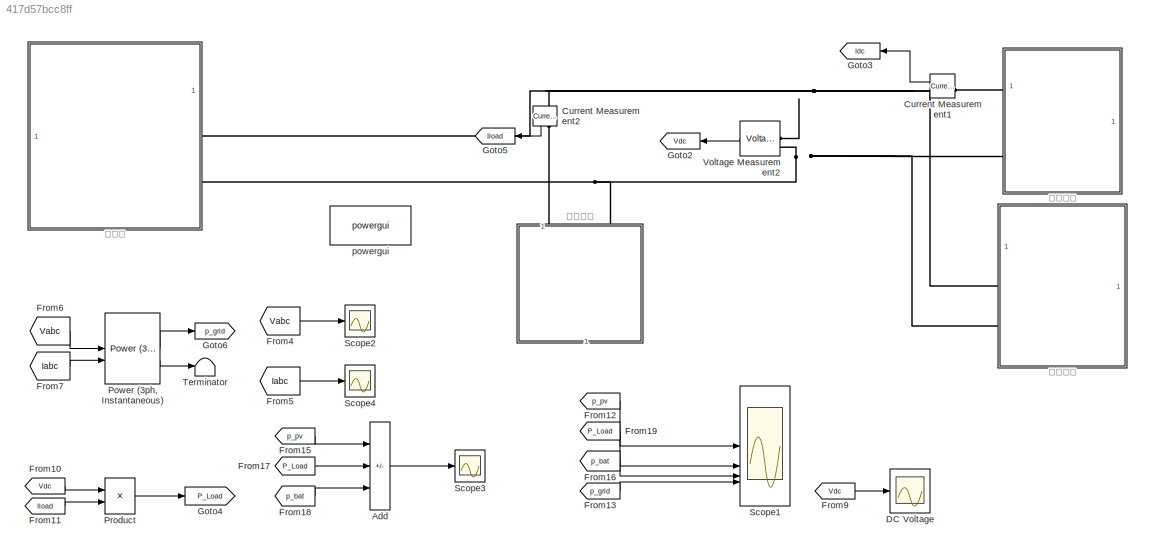
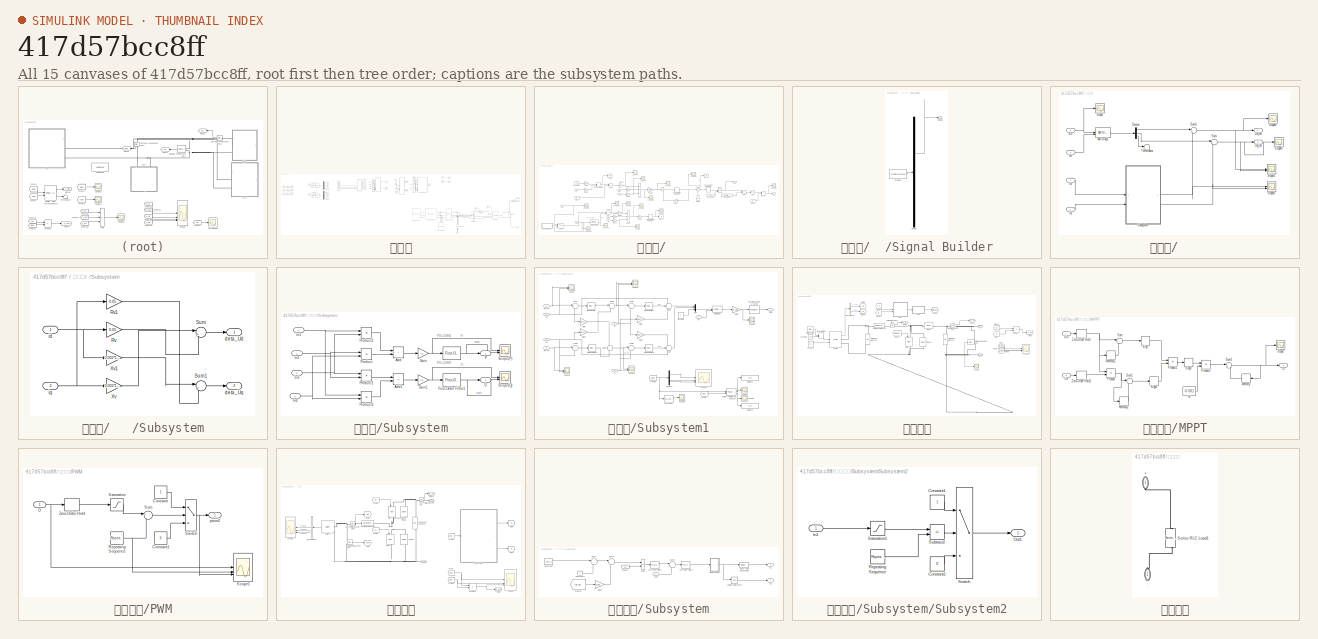
[diagram: thumbnail index - all 15 canvases of the model, root first then tree order]
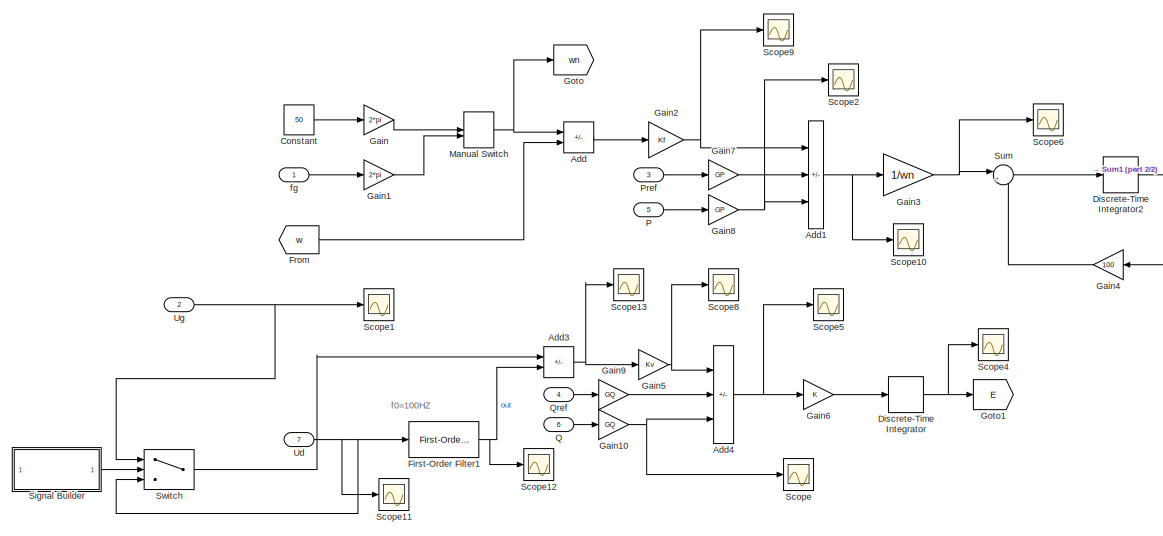
[diagram: 交流测/   - part 1/2, left side, full height]
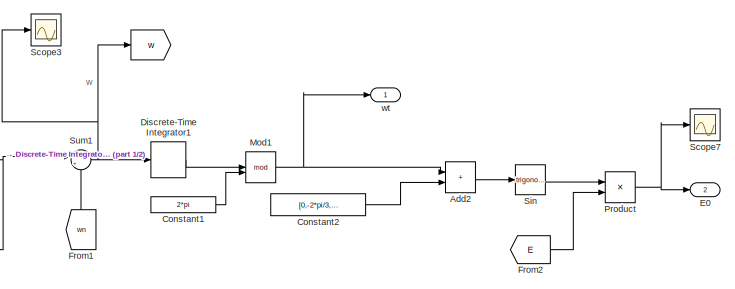
[diagram: 交流测/   - part 2/2, top right region]
MODEL slx_417d57bcc8ff
KIND model
CONFIG AbsTol = auto
CONFIG EnableMultiTasking = off
CONFIG FixedStep = auto
CONFIG InitFcn = clear all;\n\nStep_time=2;  %并网转离网的切换时间\nTf=0.0159*0.25 %直流侧电流滤波常数\n\nVdc_H2=720;   %直流母线电压最大值\nVdc_H1=710;   %\nUdc=700;   %直流母线电压最大值\nVdc_L1=690;   \nVdc_L2=680;   %直流母线电压最小值\n\n%% 并网变流器部分 %%\nP_grid=100e3;  %变流器额定功率\nCg=3227e-6;   %直流母线电容\nP_grid=100e3;  %变流器额定功率\nIdc_max=145;   %直流侧最大输出电流\n%Rg=(720-700)/Idc_max;   %下垂系数\nRg=40*(Udc-40)/P_grid;   %下垂系数\nIgrid_max=72;   %并网逆变器最大充放电电流（交流侧）\n\n%% 蓄电池部分 %%\nP_ba=50e3; ...<+221ch>
CONFIG MaxStep = auto
CONFIG MinStep = auto
CONFIG RelTol = 1e-3
CONFIG SampleTimeConstraint = Unconstrained
CONFIG SolverName = VariableStepAuto
CONFIG StartTime = 0.0
CONFIG StopTime = 4
WORKSPACE source: mxarray member
WORKSPACE C = 0.002
WORKSPACE GP = 1
WORKSPACE GQ = 0.01
WORKSPACE J = 5
WORKSPACE KQ = 0.06
WORKSPACE Kf = 800
WORKSPACE Kv = 577
WORKSPACE L = 0.002
WORKSPACE Ts = 5e-05
WORKSPACE Vdc = 400
WORKSPACE fsw = 20000
WORKSPACE wn = 314.159265359
BLOCK [Sum] Add
  IconShape = rectangular
  Inputs = +--
BLOCK [Reference] Current Measurement1  REF=spsCurrentMeasurementLib/Current Measurement
  LibrarySourceBlock = sps_lib/Sensors and Measurements/Current Measurement
  SourceBlock = spsCurrentMeasurementLib/Current Measurement
  SourceType = Current Measurement
  UserDataPersistent = on
BLOCK [Reference] Current Measurement2  REF=spsCurrentMeasurementLib/Current Measurement
  LibrarySourceBlock = sps_lib/Sensors and Measurements/Current Measurement
  NameLocation = right
  SourceBlock = spsCurrentMeasurementLib/Current Measurement
  SourceType = Current Measurement
  UserDataPersistent = on
BLOCK [Scope] DC Voltage
  Floating = off
  NumInputPorts = 1
  ScopeSpecificationString = Simulink.scopes.TimeScopeBlockCfg('CurrentConfiguration', extmgr.ConfigurationSet(extmgr.Configuration('Core','General UI',true,'FigureColor',[1 1 1]),extmgr.Configuration('Core','Source UI',true),extmgr.Configuration('Sources','WiredSimulink',true,'DataLoggingVariableName','ScopeData1'),extmgr.Configuration('Visuals','Time Domain',true,'SerializedDisplays',{struct('MinYLimReal','-137.0594','MaxYL...<+1584ch>
BLOCK [From] From10
  GotoTag = Vdc
  TagVisibility = global
BLOCK [From] From11
  GotoTag = Iload
  TagVisibility = global
BLOCK [From] From12
  GotoTag = p_pv
  TagVisibility = global
BLOCK [From] From13
  GotoTag = p_grid
BLOCK [From] From15
  GotoTag = p_pv
  TagVisibility = global
BLOCK [From] From16
  GotoTag = p_bat
  TagVisibility = global
BLOCK [From] From17
  GotoTag = P_Load
  TagVisibility = global
BLOCK [From] From18
  GotoTag = p_bat
  TagVisibility = global
BLOCK [From] From19
  GotoTag = P_Load
  TagVisibility = global
BLOCK [From] From4
  GotoTag = Vabc
  TagVisibility = global
BLOCK [From] From5
  GotoTag = Iabc
  TagVisibility = global
BLOCK [From] From6
  GotoTag = Vabc
  TagVisibility = global
BLOCK [From] From7
  GotoTag = Iabc
  TagVisibility = global
BLOCK [From] From9
  GotoTag = Vdc
  TagVisibility = global
BLOCK [Goto] Goto2
  GotoTag = Vdc
  TagVisibility = global
BLOCK [Goto] Goto3
  GotoTag = Idc
  TagVisibility = global
BLOCK [Goto] Goto4
  GotoTag = P_Load
  TagVisibility = global
BLOCK [Goto] Goto5
  GotoTag = Iload
  TagVisibility = global
BLOCK [Goto] Goto6
  GotoTag = p_grid
BLOCK [Reference] Power (3ph, Instantaneous)  REF=spsPower3phInstantaneousLib/Power
(3ph, Instantaneous)
  LibrarySourceBlock = sps_lib/Sensors and Measurements/Power\n(3ph, Instantaneous)
  SourceBlock = spsPower3phInstantaneousLib/Power\n(3ph, Instantaneous)
  SourceType = Power (3ph, Instantaneous)
BLOCK [Product] Product
BLOCK [Scope] Scope1
  Floating = off
  NumInputPorts = 4
  ScopeSpecificationString = Simulink.scopes.TimeScopeBlockCfg('CurrentConfiguration', extmgr.ConfigurationSet(extmgr.Configuration('Core','General UI',true,'FigureColor',[1 1 1]),extmgr.Configuration('Core','Source UI',true),extmgr.Configuration('Sources','WiredSimulink',true,'DataLoggingVariableName','ScopeData3'),extmgr.Configuration('Visuals','Time Domain',true,'SerializedDisplays',{struct('MinYLimReal','-140098.10766','M...<+4003ch>
BLOCK [Scope] Scope2
  Floating = off
  NumInputPorts = 1
  ScopeSpecificationString = Simulink.scopes.TimeScopeBlockCfg('CurrentConfiguration', extmgr.ConfigurationSet(extmgr.Configuration('Core','General UI',true),extmgr.Configuration('Core','Source UI',true),extmgr.Configuration('Sources','WiredSimulink',true,'DataLoggingVariableName','test','DataLogging',true,'DataLoggingSaveFormat','StructureWithTime'),extmgr.Configuration('Visuals','Time Domain',true,'SerializedDisplays',{stru...<+1567ch>
BLOCK [Scope] Scope3
  Floating = off
  NumInputPorts = 1
  ScopeSpecificationString = Simulink.scopes.TimeScopeBlockCfg('CurrentConfiguration', extmgr.ConfigurationSet(extmgr.Configuration('Core','General UI',true,'FigureColor',[1 1 1]),extmgr.Configuration('Core','Source UI',true),extmgr.Configuration('Sources','WiredSimulink',true,'DataLoggingVariableName','ScopeData5'),extmgr.Configuration('Visuals','Time Domain',true,'SerializedDisplays',{struct('MinYLimReal','-345597.76379','M...<+1581ch>
BLOCK [Scope] Scope4
  Floating = off
  NumInputPorts = 1
  ScopeSpecificationString = Simulink.scopes.TimeScopeBlockCfg('CurrentConfiguration', extmgr.ConfigurationSet(extmgr.Configuration('Core','General UI',true),extmgr.Configuration('Core','Source UI',true),extmgr.Configuration('Sources','WiredSimulink',true,'DataLoggingVariableName','ScopeData2'),extmgr.Configuration('Visuals','Time Domain',true,'SerializedDisplays',{struct('MinYLimReal','-432.88404','MaxYLimReal','462.87204','...<+1510ch>
BLOCK [Terminator] Terminator
BLOCK [Reference] Voltage Measurement2  REF=spsVoltageMeasurementLib/Voltage Measurement
  LibrarySourceBlock = sps_lib/Sensors and Measurements/Voltage Measurement
  SourceBlock = spsVoltageMeasurementLib/Voltage Measurement
  SourceType = Voltage Measurement
  UserDataPersistent = on
BLOCK [Reference] powergui  REF=spspowerguiLib/powergui
  Priority = 1
  SourceBlock = spspowerguiLib/powergui
  SourceType = PSB option menu block
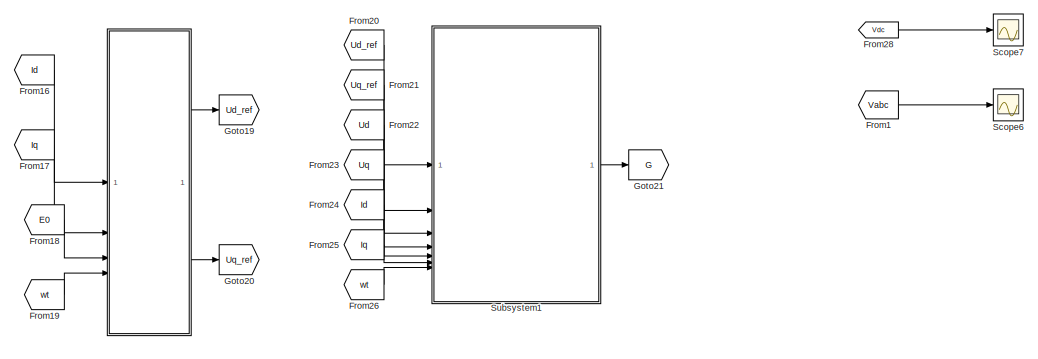
[diagram: 交流测 - part 1/5, top center region]
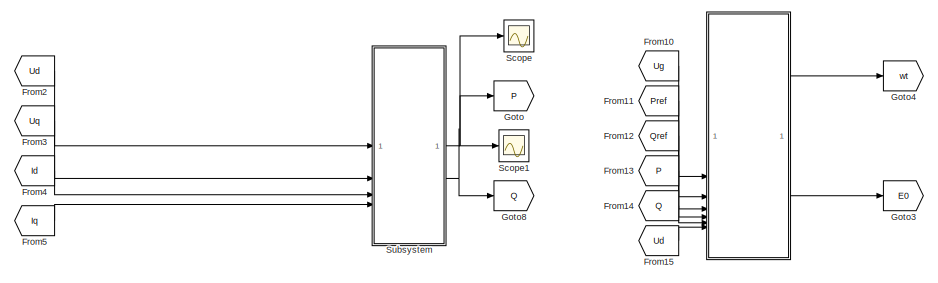
[diagram: 交流测 - part 2/5, top center region]
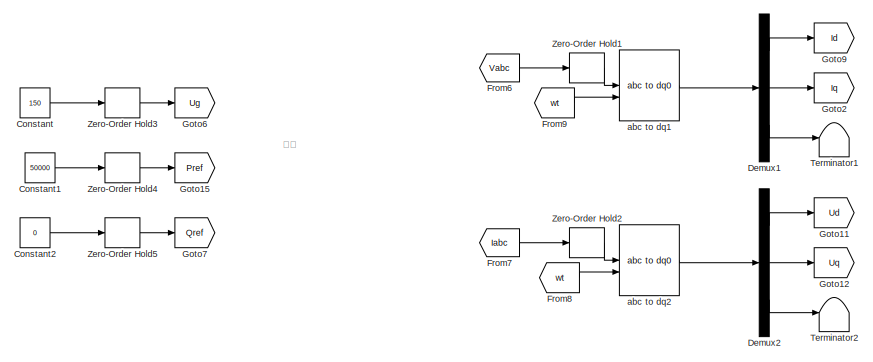
[diagram: 交流测 - part 3/5, top left region]
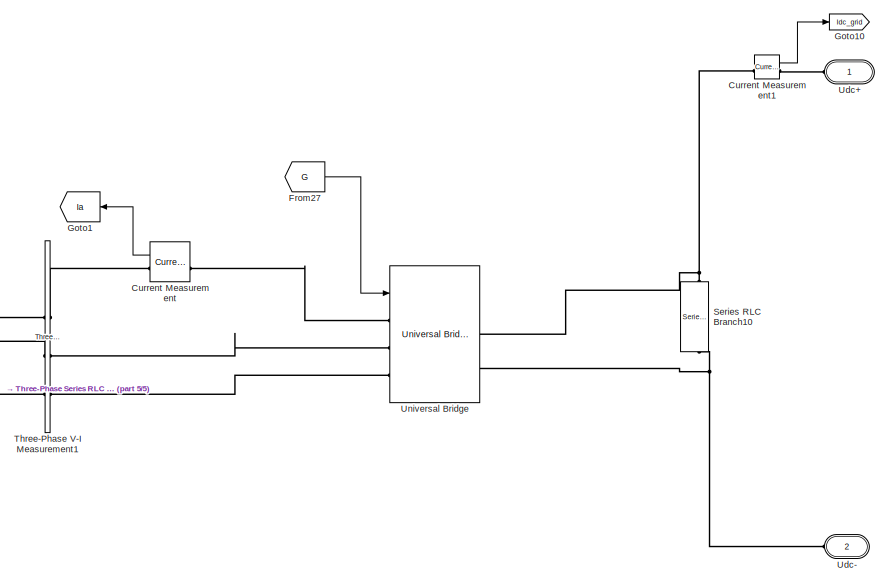
[diagram: 交流测 - part 4/5, middle right region]
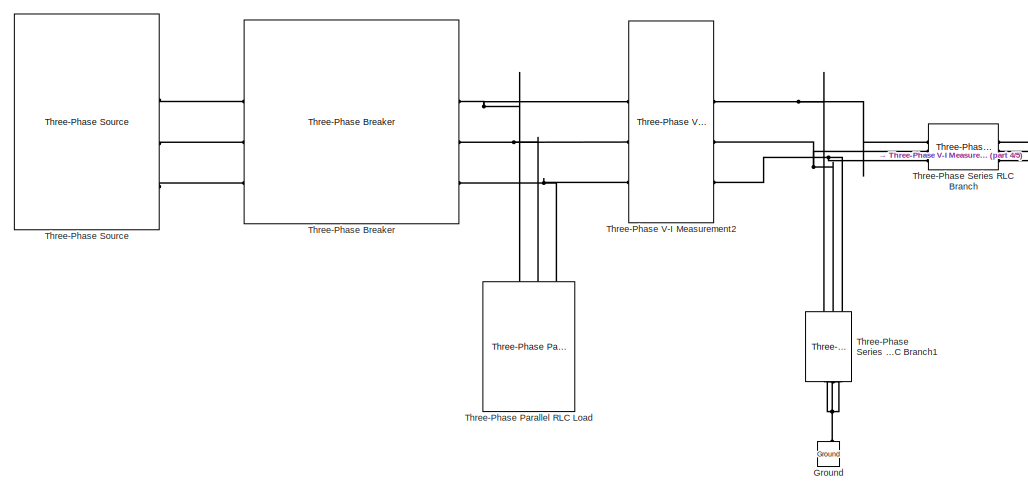
[diagram: 交流测 - part 5/5, bottom center region]
BLOCK [SubSystem] 交流测
BLOCK [SubSystem] 交流测/  
BLOCK [SubSystem] 交流测/   
BLOCK [Demux] 交流测/   /Demux
  Outputs = 3
BLOCK [Inport] 交流测/   /E0
  Description = Cont
  Port = 3
BLOCK [Inport] 交流测/   /Id
BLOCK [Inport] 交流测/   /Iq
  Port = 2
BLOCK [Scope] 交流测/   /Scope
  Floating = off
  NumInputPorts = 1
  ScopeSpecificationString = Simulink.scopes.TimeScopeBlockCfg('CurrentConfiguration', extmgr.ConfigurationSet(extmgr.Configuration('Core','General UI',true),extmgr.Configuration('Core','Source UI',true),extmgr.Configuration('Sources','WiredSimulink',true),extmgr.Configuration('Visuals','Time Domain',true,'SerializedDisplays',{struct('MinYLimReal','-1483.56308','MaxYLimReal','1483.139','YLabelReal','','MinYLimMag','  0.00000'...<+1356ch>
BLOCK [Scope] 交流测/   /Scope1
  Floating = off
  NumInputPorts = 2
  ScopeSpecificationString = Simulink.scopes.TimeScopeBlockCfg('CurrentConfiguration', extmgr.ConfigurationSet(extmgr.Configuration('Core','General UI',true),extmgr.Configuration('Core','Source UI',true),extmgr.Configuration('Sources','WiredSimulink',true,'DataLoggingVariableName','ScopeData1'),extmgr.Configuration('Visuals','Time Domain',true,'SerializedDisplays',{struct('MinYLimReal','-3363.40131','MaxYLimReal','3214.4683',...<+1389ch>
BLOCK [Scope] 交流测/   /Scope2
  Floating = off
  NumInputPorts = 1
  ScopeSpecificationString = Simulink.scopes.TimeScopeBlockCfg('CurrentConfiguration', extmgr.ConfigurationSet(extmgr.Configuration('Core','General UI',true),extmgr.Configuration('Core','Source UI',true),extmgr.Configuration('Sources','WiredSimulink',true,'DataLoggingVariableName','ScopeData3'),extmgr.Configuration('Visuals','Time Domain',true,'SerializedDisplays',{struct('MinYLimReal','-388.39314','MaxYLimReal','1172.64112',...<+1406ch>
BLOCK [Scope] 交流测/   /Scope3
  Floating = off
  NumInputPorts = 2
  ScopeSpecificationString = Simulink.scopes.TimeScopeBlockCfg('CurrentConfiguration', extmgr.ConfigurationSet(extmgr.Configuration('Core','General UI',true),extmgr.Configuration('Core','Source UI',true),extmgr.Configuration('Sources','WiredSimulink',true,'DataLoggingVariableName','ScopeData3'),extmgr.Configuration('Visuals','Time Domain',true),extmgr.Configuration('Tools','Plot Navigation',true),extmgr.Configuration('Tools',...<+58ch>
BLOCK [Scope] 交流测/   /Scope4
  Floating = off
  NumInputPorts = 1
  ScopeSpecificationString = Simulink.scopes.TimeScopeBlockCfg('CurrentConfiguration', extmgr.ConfigurationSet(extmgr.Configuration('Core','General UI',true),extmgr.Configuration('Core','Source UI',true),extmgr.Configuration('Sources','WiredSimulink',true,'DataLoggingVariableName','ScopeData4'),extmgr.Configuration('Visuals','Time Domain',true),extmgr.Configuration('Tools','Plot Navigation',true),extmgr.Configuration('Tools',...<+40ch>
BLOCK [SubSystem] 交流测/   /Subsystem
BLOCK [Gain] 交流测/   /Subsystem/Rv
  Gain = 0.05
BLOCK [Gain] 交流测/   /Subsystem/Rv1
  Gain = 0.05
BLOCK [Sum] 交流测/   /Subsystem/Sum
  Inputs = |+-
BLOCK [Sum] 交流测/   /Subsystem/Sum1
  Inputs = |++
BLOCK [Gain] 交流测/   /Subsystem/Xv
  Gain = 0.002*100*pi
BLOCK [Gain] 交流测/   /Subsystem/Xv1
  Gain = 0.002*100*pi
BLOCK [Outport] 交流测/   /Subsystem/deta_Ud
BLOCK [Outport] 交流测/   /Subsystem/deta_Uq
  Port = 2
BLOCK [Inport] 交流测/   /Subsystem/id
BLOCK [Inport] 交流测/   /Subsystem/iq
  Port = 2
BLOCK [Sum] 交流测/   /Sum
  Inputs = |+-
BLOCK [Sum] 交流测/   /Sum1
  Inputs = |++
BLOCK [Terminator] 交流测/   /Terminator
BLOCK [Outport] 交流测/   /Ud_ref
BLOCK [Outport] 交流测/   /Uq_ref
  Port = 2
BLOCK [Reference] 交流测/   /abc to dq1  REF=spsabctodq0Lib/abc to dq0
  LibrarySourceBlock = sps_lib/Control/abc to dq0
  SourceBlock = spsabctodq0Lib/abc to dq0
  SourceType = abc to dq0 Transformation
BLOCK [Inport] 交流测/   /wt
  Port = 4
BLOCK [Goto] 交流测/  / 
  GotoTag = w
BLOCK [Sum] 交流测/  /Add
  IconShape = rectangular
  Inputs = +-
BLOCK [Sum] 交流测/  /Add1
  IconShape = rectangular
  Inputs = ++-
BLOCK [Sum] 交流测/  /Add2
  IconShape = rectangular
BLOCK [Sum] 交流测/  /Add3
  IconShape = rectangular
  Inputs = +-
BLOCK [Sum] 交流测/  /Add4
  IconShape = rectangular
  Inputs = ++-
BLOCK [Constant] 交流测/  /Constant
  Value = 50
BLOCK [Constant] 交流测/  /Constant1
  Value = 2*pi
BLOCK [Constant] 交流测/  /Constant2
  Value = [0,-2*pi/3,2*pi/3]
BLOCK [DiscreteIntegrator] 交流测/  /Discrete-Time Integrator
  ICPrevOutput = DiscIntNeverNeededParam
  ICPrevScaledInput = DiscIntNeverNeededParam
  InitialConditionSetting = Auto
  SampleTime = 1/fsw
  gainval = KQ
BLOCK [DiscreteIntegrator] 交流测/  /Discrete-Time Integrator1
  ICPrevOutput = DiscIntNeverNeededParam
  ICPrevScaledInput = DiscIntNeverNeededParam
  InitialConditionSetting = Auto
  SampleTime = 1/fsw
BLOCK [DiscreteIntegrator] 交流测/  /Discrete-Time Integrator2
  ICPrevOutput = DiscIntNeverNeededParam
  ICPrevScaledInput = DiscIntNeverNeededParam
  InitialConditionSetting = Auto
  SampleTime = 1/fsw
  gainval = 1/J
BLOCK [Outport] 交流测/  /E0
  Port = 2
BLOCK [Reference] 交流测/  /First-Order Filter1  REF=spsFirstOrderFilterLib/First-Order
Filter
  LibrarySourceBlock = sps_lib/Control/Filters/First-Order\nFilter
  SourceBlock = spsFirstOrderFilterLib/First-Order\nFilter
  SourceType = First-Order Filter
BLOCK [From] 交流测/  /From
  GotoTag = w
BLOCK [From] 交流测/  /From1
  GotoTag = wn
  NameLocation = right
BLOCK [From] 交流测/  /From2
  GotoTag = E
BLOCK [Gain] 交流测/  /Gain
  Gain = 2*pi
BLOCK [Gain] 交流测/  /Gain1
  Gain = 2*pi
BLOCK [Gain] 交流测/  /Gain10
  Gain = GQ
BLOCK [Gain] 交流测/  /Gain2
  Gain = Kf
BLOCK [Gain] 交流测/  /Gain3
  Gain = 1/wn
BLOCK [Gain] 交流测/  /Gain4
  Gain = 100
BLOCK [Gain] 交流测/  /Gain5
  Gain = Kv
BLOCK [Gain] 交流测/  /Gain6
BLOCK [Gain] 交流测/  /Gain7
  Gain = GP
BLOCK [Gain] 交流测/  /Gain8
  Gain = GP
BLOCK [Gain] 交流测/  /Gain9
  Gain = GQ
BLOCK [Goto] 交流测/  /Goto
  GotoTag = wn
BLOCK [Goto] 交流测/  /Goto1
  GotoTag = E
BLOCK [ManualSwitch] 交流测/  /Manual Switch
BLOCK [Math] 交流测/  /Mod1
  Operator = mod
BLOCK [Inport] 交流测/  /P
  Port = 5
BLOCK [Inport] 交流测/  /Pref
  Port = 3
BLOCK [Product] 交流测/  /Product
BLOCK [Inport] 交流测/  /Q
  Port = 6
BLOCK [Inport] 交流测/  /Qref
  Port = 4
BLOCK [Scope] 交流测/  /Scope
  Floating = off
  NumInputPorts = 1
  ScopeSpecificationString = Simulink.scopes.TimeScopeBlockCfg('CurrentConfiguration', extmgr.ConfigurationSet(extmgr.Configuration('Core','General UI',true),extmgr.Configuration('Core','Source UI',true),extmgr.Configuration('Sources','WiredSimulink',true),extmgr.Configuration('Visuals','Time Domain',true,'SerializedDisplays',{struct('MinYLimReal','-1146.4211','MaxYLimReal','716.58299','YLabelReal','','MinYLimMag','  0.00000'...<+1450ch>
BLOCK [Scope] 交流测/  /Scope1
  Floating = off
  NumInputPorts = 1
  ScopeSpecificationString = Simulink.scopes.TimeScopeBlockCfg('CurrentConfiguration', extmgr.ConfigurationSet(extmgr.Configuration('Core','General UI',true),extmgr.Configuration('Core','Source UI',true),extmgr.Configuration('Sources','WiredSimulink',true,'DataLoggingVariableName','ScopeData2'),extmgr.Configuration('Visuals','Time Domain',true,'SerializedDisplays',{struct('MinYLimReal','-25.00000','MaxYLimReal','225.00000','Y...<+1481ch>
BLOCK [Scope] 交流测/  /Scope10
  Floating = off
  NumInputPorts = 1
  ScopeSpecificationString = Simulink.scopes.TimeScopeBlockCfg('CurrentConfiguration', extmgr.ConfigurationSet(extmgr.Configuration('Core','General UI',true),extmgr.Configuration('Core','Source UI',true),extmgr.Configuration('Sources','WiredSimulink',true,'DataLoggingVariableName','ScopeData8'),extmgr.Configuration('Visuals','Time Domain',true,'SerializedDisplays',{struct('MinYLimReal','-46410.89145','MaxYLimReal','63521.2692...<+1428ch>
BLOCK [Scope] 交流测/  /Scope11
  Floating = off
  NumInputPorts = 1
  ScopeSpecificationString = Simulink.scopes.TimeScopeBlockCfg('CurrentConfiguration', extmgr.ConfigurationSet(extmgr.Configuration('Core','General UI',true),extmgr.Configuration('Core','Source UI',true),extmgr.Configuration('Sources','WiredSimulink',true,'DataLoggingVariableName','ScopeData1'),extmgr.Configuration('Visuals','Time Domain',true,'SerializedDisplays',{struct('MinYLimReal','-276.57965','MaxYLimReal','756.49485','...<+1485ch>
BLOCK [Scope] 交流测/  /Scope12
  Floating = off
  NumInputPorts = 1
  ScopeSpecificationString = Simulink.scopes.TimeScopeBlockCfg('CurrentConfiguration', extmgr.ConfigurationSet(extmgr.Configuration('Core','General UI',true),extmgr.Configuration('Core','Source UI',true),extmgr.Configuration('Sources','WiredSimulink',true,'DataLoggingVariableName','ScopeData1'),extmgr.Configuration('Visuals','Time Domain',true,'SerializedDisplays',{struct('MinYLimReal','-276.57965','MaxYLimReal','756.49485','...<+1492ch>
BLOCK [Scope] 交流测/  /Scope13
  Floating = off
  NumInputPorts = 1
  ScopeSpecificationString = Simulink.scopes.TimeScopeBlockCfg('CurrentConfiguration', extmgr.ConfigurationSet(extmgr.Configuration('Core','General UI',true),extmgr.Configuration('Core','Source UI',true),extmgr.Configuration('Sources','WiredSimulink',true,'DataLoggingVariableName','ScopeData4'),extmgr.Configuration('Visuals','Time Domain',true,'SerializedDisplays',{struct('MinYLimReal','-486.82994','MaxYLimReal','219.82269','...<+1519ch>
BLOCK [Scope] 交流测/  /Scope2
  Floating = off
  NumInputPorts = 1
  ScopeSpecificationString = Simulink.scopes.TimeScopeBlockCfg('CurrentConfiguration', extmgr.ConfigurationSet(extmgr.Configuration('Core','General UI',true),extmgr.Configuration('Core','Source UI',true),extmgr.Configuration('Sources','WiredSimulink',true,'DataLoggingVariableName','ScopeData2'),extmgr.Configuration('Visuals','Time Domain',true,'SerializedDisplays',{struct('MinYLimReal','-296388.78152','MaxYLimReal','130751.87...<+1421ch>
BLOCK [Scope] 交流测/  /Scope3
  Floating = off
  NumInputPorts = 1
  ScopeSpecificationString = Simulink.scopes.TimeScopeBlockCfg('CurrentConfiguration', extmgr.ConfigurationSet(extmgr.Configuration('Core','General UI',true),extmgr.Configuration('Core','Source UI',true),extmgr.Configuration('Sources','WiredSimulink',true,'DataLoggingVariableName','ScopeData3'),extmgr.Configuration('Visuals','Time Domain',true,'SerializedDisplays',{struct('MinYLimReal','312.0335','MaxYLimReal','321.40866','YL...<+1421ch>
BLOCK [Scope] 交流测/  /Scope4
  Floating = off
  NumInputPorts = 1
  ScopeSpecificationString = Simulink.scopes.TimeScopeBlockCfg('CurrentConfiguration', extmgr.ConfigurationSet(extmgr.Configuration('Core','General UI',true),extmgr.Configuration('Core','Source UI',true),extmgr.Configuration('Sources','WiredSimulink',true,'DataLoggingVariableName','ScopeData4'),extmgr.Configuration('Visuals','Time Domain',true,'SerializedDisplays',{struct('MinYLimReal','-245.02655','MaxYLimReal','1346.1581','...<+1422ch>
BLOCK [Scope] 交流测/  /Scope5
  Floating = off
  NumInputPorts = 1
  ScopeSpecificationString = Simulink.scopes.TimeScopeBlockCfg('CurrentConfiguration', extmgr.ConfigurationSet(extmgr.Configuration('Core','General UI',true),extmgr.Configuration('Core','Source UI',true),extmgr.Configuration('Sources','WiredSimulink',true,'DataLoggingVariableName','ScopeData3'),extmgr.Configuration('Visuals','Time Domain',true,'SerializedDisplays',{struct('MinYLimReal','-95809.8857','MaxYLimReal','213486.5867...<+1428ch>
BLOCK [Scope] 交流测/  /Scope6
  Floating = off
  NumInputPorts = 1
  ScopeSpecificationString = Simulink.scopes.TimeScopeBlockCfg('CurrentConfiguration', extmgr.ConfigurationSet(extmgr.Configuration('Core','General UI',true),extmgr.Configuration('Core','Source UI',true),extmgr.Configuration('Sources','WiredSimulink',true,'DataLoggingVariableName','ScopeData4'),extmgr.Configuration('Visuals','Time Domain',true,'SerializedDisplays',{struct('MinYLimReal','-173.87943','MaxYLimReal','560.05118','...<+1403ch>
BLOCK [Scope] 交流测/  /Scope7
  Floating = off
  NumInputPorts = 1
  ScopeSpecificationString = Simulink.scopes.TimeScopeBlockCfg('CurrentConfiguration', extmgr.ConfigurationSet(extmgr.Configuration('Core','General UI',true),extmgr.Configuration('Core','Source UI',true),extmgr.Configuration('Sources','WiredSimulink',true,'DataLoggingVariableName','ScopeData5'),extmgr.Configuration('Visuals','Time Domain',true,'SerializedDisplays',{struct('MinYLimReal','-33963.09868','MaxYLimReal','34038.2723...<+1523ch>
BLOCK [Scope] 交流测/  /Scope8
  Floating = off
  NumInputPorts = 1
  ScopeSpecificationString = Simulink.scopes.TimeScopeBlockCfg('CurrentConfiguration', extmgr.ConfigurationSet(extmgr.Configuration('Core','General UI',true),extmgr.Configuration('Core','Source UI',true),extmgr.Configuration('Sources','WiredSimulink',true,'DataLoggingVariableName','ScopeData6'),extmgr.Configuration('Visuals','Time Domain',true,'SerializedDisplays',{struct('MinYLimReal','-7557.5276','MaxYLimReal','10316.86784'...<+1462ch>
BLOCK [Scope] 交流测/  /Scope9
  Floating = off
  NumInputPorts = 1
  ScopeSpecificationString = Simulink.scopes.TimeScopeBlockCfg('CurrentConfiguration', extmgr.ConfigurationSet(extmgr.Configuration('Core','General UI',true),extmgr.Configuration('Core','Source UI',true),extmgr.Configuration('Sources','WiredSimulink',true,'DataLoggingVariableName','ScopeData7'),extmgr.Configuration('Visuals','Time Domain',true,'SerializedDisplays',{struct('MinYLimReal','-641.01527','MaxYLimReal','162.64041','...<+1397ch>
BLOCK [SubSystem] 交流测/  /Signal Builder
  ClipboardFcn = sigbuilder_block('clipboard');
  CloseFcn = sigbuilder_block('close');
  ContinueFcn = sigbuilder_block('continue');
  CopyFcn = sigbuilder_block('copy');
  DeleteFcn = sigbuilder_block('delete');
  LoadFcn = sigbuilder_block('load');
  MaskHideContents = on
  ModelCloseFcn = sigbuilder_block('modelClose');
  NameChangeFcn = sigbuilder_block('namechange');
  OpenFcn = sigbuilder_block('open',[437.6 199.2 550.4 400 ]);
  PauseFcn = sigbuilder_block('pause');
  PreSaveFcn = sigbuilder_block('preSave');
  StartFcn = sigbuilder_block('start');
  StopFcn = sigbuilder_block('stop');
  Tag = STV Subsys
BLOCK [Demux] 交流测/  /Signal Builder/Demux
  DisplayOption = none
  Outputs = 1
  Tag = STV Demux
BLOCK [FromWorkspace] 交流测/  /Signal Builder/FromWs
  Tag = STV FromWs
  VariableName = tuvar
BLOCK [Outport] 交流测/  /Signal Builder/Signal 1
  Tag = STV Outport
BLOCK [Trigonometry] 交流测/  /Sin
BLOCK [Sum] 交流测/  /Sum
  Inputs = |+-
BLOCK [Sum] 交流测/  /Sum1
  Inputs = |++
BLOCK [Switch] 交流测/  /Switch
  Criteria = u2 > Threshold
  InputSameDT = off
  SaturateOnIntegerOverflow = off
  Threshold = 0.95
BLOCK [Inport] 交流测/  /Ud
  Port = 7
BLOCK [Inport] 交流测/  /Ug
  Port = 2
BLOCK [Inport] 交流测/  /fg
BLOCK [Outport] 交流测/  /wt
BLOCK [Constant] 交流测/Constant
  Value = 150
BLOCK [Constant] 交流测/Constant1
  Value = 50000
BLOCK [Constant] 交流测/Constant2
  Value = 0
BLOCK [Reference] 交流测/Current Measurement  REF=spsCurrentMeasurementLib/Current Measurement
  LibrarySourceBlock = sps_lib/Sensors and Measurements/Current Measurement
  SourceBlock = spsCurrentMeasurementLib/Current Measurement
  SourceType = Current Measurement
  UserDataPersistent = on
BLOCK [Reference] 交流测/Current Measurement1  REF=spsCurrentMeasurementLib/Current Measurement
  LibrarySourceBlock = sps_lib/Sensors and Measurements/Current Measurement
  SourceBlock = spsCurrentMeasurementLib/Current Measurement
  SourceType = Current Measurement
  UserDataPersistent = on
BLOCK [Demux] 交流测/Demux1
  Outputs = 3
BLOCK [Demux] 交流测/Demux2
  Outputs = 3
BLOCK [From] 交流测/From1
  GotoTag = Vabc
  TagVisibility = global
BLOCK [From] 交流测/From10
  GotoTag = Ug
BLOCK [From] 交流测/From11
  GotoTag = Pref
BLOCK [From] 交流测/From12
  GotoTag = Qref
BLOCK [From] 交流测/From13
  GotoTag = P
BLOCK [From] 交流测/From14
  GotoTag = Q
BLOCK [From] 交流测/From15
  GotoTag = Ud
BLOCK [From] 交流测/From16
  GotoTag = Id
BLOCK [From] 交流测/From17
  GotoTag = Iq
BLOCK [From] 交流测/From18
  GotoTag = E0
BLOCK [From] 交流测/From19
  GotoTag = wt
BLOCK [From] 交流测/From2
  GotoTag = Ud
BLOCK [From] 交流测/From20
  GotoTag = Ud_ref
BLOCK [From] 交流测/From21
  GotoTag = Uq_ref
BLOCK [From] 交流测/From22
  GotoTag = Ud
BLOCK [From] 交流测/From23
  GotoTag = Uq
BLOCK [From] 交流测/From24
  GotoTag = Id
BLOCK [From] 交流测/From25
  GotoTag = Iq
BLOCK [From] 交流测/From26
  GotoTag = wt
BLOCK [From] 交流测/From27
  GotoTag = G
BLOCK [From] 交流测/From28
  GotoTag = Vdc
  NameLocation = top
  TagVisibility = global
BLOCK [From] 交流测/From3
  GotoTag = Uq
BLOCK [From] 交流测/From4
  GotoTag = Id
BLOCK [From] 交流测/From5
  GotoTag = Iq
BLOCK [From] 交流测/From6
  GotoTag = Vabc
  TagVisibility = global
BLOCK [From] 交流测/From7
  GotoTag = Iabc
  TagVisibility = global
BLOCK [From] 交流测/From8
  GotoTag = wt
BLOCK [From] 交流测/From9
  GotoTag = wt
BLOCK [Goto] 交流测/Goto
  GotoTag = P
BLOCK [Goto] 交流测/Goto1
  GotoTag = Ia
  TagVisibility = global
BLOCK [Goto] 交流测/Goto10
  GotoTag = Idc_grid
  TagVisibility = global
BLOCK [Goto] 交流测/Goto11
  GotoTag = Ud
BLOCK [Goto] 交流测/Goto12
  GotoTag = Uq
BLOCK [Goto] 交流测/Goto15
  GotoTag = Pref
BLOCK [Goto] 交流测/Goto19
  GotoTag = Ud_ref
BLOCK [Goto] 交流测/Goto2
  GotoTag = Iq
BLOCK [Goto] 交流测/Goto20
  GotoTag = Uq_ref
BLOCK [Goto] 交流测/Goto21
  GotoTag = G
BLOCK [Goto] 交流测/Goto3
  GotoTag = E0
BLOCK [Goto] 交流测/Goto4
  GotoTag = wt
BLOCK [Goto] 交流测/Goto6
  GotoTag = Ug
BLOCK [Goto] 交流测/Goto7
  GotoTag = Qref
BLOCK [Goto] 交流测/Goto8
  GotoTag = Q
BLOCK [Goto] 交流测/Goto9
  GotoTag = Id
BLOCK [Reference] 交流测/Ground  REF=spsGroundLib/Ground
  LibrarySourceBlock = sps_lib/Utilities/Ground
  NameLocation = right
  SourceBlock = spsGroundLib/Ground
  SourceType = Ground
BLOCK [Scope] 交流测/Scope
  Floating = off
  NumInputPorts = 1
  ScopeSpecificationString = Simulink.scopes.TimeScopeBlockCfg('CurrentConfiguration', extmgr.ConfigurationSet(extmgr.Configuration('Core','General UI',true),extmgr.Configuration('Core','Source UI',true),extmgr.Configuration('Sources','WiredSimulink',true,'DataLoggingVariableName','ScopeData2'),extmgr.Configuration('Visuals','Time Domain',true,'SerializedDisplays',{struct('MinYLimReal','-136633.79377','MaxYLimReal','108874.81...<+1465ch>
BLOCK [Scope] 交流测/Scope1
  Floating = off
  NumInputPorts = 1
  ScopeSpecificationString = Simulink.scopes.TimeScopeBlockCfg('CurrentConfiguration', extmgr.ConfigurationSet(extmgr.Configuration('Core','General UI',true),extmgr.Configuration('Core','Source UI',true),extmgr.Configuration('Sources','WiredSimulink',true,'DataLoggingVariableName','ScopeData3'),extmgr.Configuration('Visuals','Time Domain',true,'SerializedDisplays',{struct('MinYLimReal','-71646.84434','MaxYLimReal','88936.4147...<+1427ch>
BLOCK [Scope] 交流测/Scope6
  Floating = off
  NumInputPorts = 1
  ScopeSpecificationString = Simulink.scopes.TimeScopeBlockCfg
BLOCK [Scope] 交流测/Scope7
  Floating = off
  NumInputPorts = 1
  ScopeSpecificationString = Simulink.scopes.TimeScopeBlockCfg('CurrentConfiguration', extmgr.ConfigurationSet(extmgr.Configuration('Core','General UI',true),extmgr.Configuration('Core','Source UI',true),extmgr.Configuration('Sources','WiredSimulink',true,'DataLoggingVariableName','ScopeData2'),extmgr.Configuration('Visuals','Time Domain',true,'SerializedDisplays',{struct('MinYLimReal','-110.19749','MaxYLimReal','991.77818','...<+1423ch>
BLOCK [Reference] 交流测/Series RLC Branch10  REF=spsSeriesRLCBranchLib/Series RLC Branch
  LibrarySourceBlock = sps_lib/Passives/Series RLC Branch
  NameLocation = left
  SourceBlock = spsSeriesRLCBranchLib/Series RLC Branch
  SourceType = Series RLC Branch
BLOCK [SubSystem] 交流测/Subsystem
BLOCK [Reference] 交流测/Subsystem/   REF=spsFirstOrderFilterLib/First-Order
Filter
  LibrarySourceBlock = sps_lib/Control/Filters/First-Order\nFilter
  SourceBlock = spsFirstOrderFilterLib/First-Order\nFilter
  SourceType = First-Order Filter
BLOCK [Sum] 交流测/Subsystem/Add
  IconShape = rectangular
BLOCK [Sum] 交流测/Subsystem/Add1
  IconShape = rectangular
  Inputs = +-
BLOCK [Reference] 交流测/Subsystem/First-Order Filter1  REF=spsFirstOrderFilterLib/First-Order
Filter
  LibrarySourceBlock = sps_lib/Control/Filters/First-Order\nFilter
  SourceBlock = spsFirstOrderFilterLib/First-Order\nFilter
  SourceType = First-Order Filter
BLOCK [Gain] 交流测/Subsystem/Gain
  Gain = 1.5
BLOCK [Gain] 交流测/Subsystem/Gain1
  Gain = 1.5
BLOCK [Inport] 交流测/Subsystem/In1
BLOCK [Inport] 交流测/Subsystem/In2
  Port = 2
BLOCK [Inport] 交流测/Subsystem/In3
  Port = 3
BLOCK [Inport] 交流测/Subsystem/In4
  Port = 4
BLOCK [Outport] 交流测/Subsystem/P
BLOCK [Product] 交流测/Subsystem/Product
BLOCK [Product] 交流测/Subsystem/Product1
BLOCK [Product] 交流测/Subsystem/Product2
BLOCK [Product] 交流测/Subsystem/Product3
BLOCK [Outport] 交流测/Subsystem/Q
  Port = 2
BLOCK [Scope] 交流测/Subsystem/Scope(P)
  Floating = off
  NumInputPorts = 2
  ScopeSpecificationString = Simulink.scopes.TimeScopeBlockCfg('CurrentConfiguration', extmgr.ConfigurationSet(extmgr.Configuration('Core','General UI',true),extmgr.Configuration('Core','Source UI',true),extmgr.Configuration('Sources','WiredSimulink',true,'DataLoggingVariableName','ScopeData1'),extmgr.Configuration('Visuals','Time Domain',true),extmgr.Configuration('Tools','Plot Navigation',true),extmgr.Configuration('Tools',...<+58ch>
BLOCK [Scope] 交流测/Subsystem/Scope(Q)
  Floating = off
  NumInputPorts = 2
  ScopeSpecificationString = Simulink.scopes.TimeScopeBlockCfg('CurrentConfiguration', extmgr.ConfigurationSet(extmgr.Configuration('Core','General UI',true),extmgr.Configuration('Core','Source UI',true),extmgr.Configuration('Sources','WiredSimulink',true,'DataLoggingVariableName','ScopeData2'),extmgr.Configuration('Visuals','Time Domain',true,'SerializedDisplays',{struct('MinYLimReal','-67310.48556','MaxYLimReal','51991.3913...<+1430ch>
BLOCK [SubSystem] 交流测/Subsystem1
BLOCK [Constant] 交流测/Subsystem1/Constant
  Value = 0
BLOCK [Demux] 交流测/Subsystem1/Demux3
  Outputs = 3
BLOCK [Display] 交流测/Subsystem1/Display1
  Decimation = 1
BLOCK [Display] 交流测/Subsystem1/Display2
  Decimation = 1
BLOCK [From] 交流测/Subsystem1/From
  GotoTag = Iabc
  TagVisibility = global
BLOCK [From] 交流测/Subsystem1/From32
  GotoTag = Uabc
BLOCK [Gain] 交流测/Subsystem1/Gain
  Gain = wn*C
BLOCK [Gain] 交流测/Subsystem1/Gain1
  Gain = wn*L
BLOCK [Gain] 交流测/Subsystem1/Gain2
  Gain = 2/Vdc
BLOCK [Gain] 交流测/Subsystem1/Gain3
  Gain = wn*C
  NameLocation = top
BLOCK [Gain] 交流测/Subsystem1/Gain4
  Gain = wn*L
  NameLocation = top
BLOCK [Inport] 交流测/Subsystem1/Id
  Port = 5
BLOCK [Inport] 交流测/Subsystem1/Iq
  Port = 6
BLOCK [Mux] 交流测/Subsystem1/Mux
  DisplayOption = bar
  Inputs = 3
BLOCK [Reference] 交流测/Subsystem1/PID Controller  REF=slpidlib/PID Controller
  LibrarySourceBlock = simulink/Continuous/PID Controller
  SourceBlock = slpidlib/PID Controller
  SourceType = PID 1dof
BLOCK [Reference] 交流测/Subsystem1/PID Controller1  REF=slpidlib/PID Controller
  LibrarySourceBlock = simulink/Continuous/PID Controller
  SourceBlock = slpidlib/PID Controller
  SourceType = PID 1dof
BLOCK [Reference] 交流测/Subsystem1/PID Controller2  REF=slpidlib/PID Controller
  LibrarySourceBlock = simulink/Continuous/PID Controller
  NameLocation = top
  SourceBlock = slpidlib/PID Controller
  SourceType = PID 1dof
BLOCK [Reference] 交流测/Subsystem1/PID Controller3  REF=slpidlib/PID Controller
  LibrarySourceBlock = simulink/Continuous/PID Controller
  NameLocation = top
  SourceBlock = slpidlib/PID Controller
  SourceType = PID 1dof
BLOCK [Reference] 交流测/Subsystem1/PLL (3ph)  REF=spsPLL3phLib/PLL
(3ph)
  LibrarySourceBlock = sps_lib/Control/PLL\n(3ph)
  SourceBlock = spsPLL3phLib/PLL\n(3ph)
  SourceType = PLL (3ph)
BLOCK [Reference] 交流测/Subsystem1/PWM Generator (2-Level)  REF=spsPWMGenerator2LevelLib/PWM Generator
(2-Level)
  LibrarySourceBlock = sps_lib/Power Electronics/Power Electronics Control/PWM Generator\n(2-Level)
  SourceBlock = spsPWMGenerator2LevelLib/PWM Generator\n(2-Level)
  SourceType = PWM Generator (2-Level)
BLOCK [Reference] 交流测/Subsystem1/Power (Positive-Sequence)  REF=spsPowerPositiveSequenceLib/Power
(Positive-Sequence)
  LibrarySourceBlock = sps_lib/Sensors and Measurements/Power\n(Positive-Sequence)
  SourceBlock = spsPowerPositiveSequenceLib/Power\n(Positive-Sequence)
  SourceType = Power (Positive-Sequence)
BLOCK [Scope] 交流测/Subsystem1/Scope
  Floating = off
  NumInputPorts = 2
  ScopeSpecificationString = Simulink.scopes.TimeScopeBlockCfg('CurrentConfiguration', extmgr.ConfigurationSet(extmgr.Configuration('Core','General UI',true),extmgr.Configuration('Core','Source UI',true),extmgr.Configuration('Sources','WiredSimulink',true),extmgr.Configuration('Visuals','Time Domain',true,'SerializedDisplays',{struct('MinYLimReal','-416.39017','MaxYLimReal','995.89854','YLabelReal','','MinYLimMag',' 0.00000',...<+1477ch>
BLOCK [Scope] 交流测/Subsystem1/Scope1
  Floating = off
  NumInputPorts = 2
  ScopeSpecificationString = Simulink.scopes.TimeScopeBlockCfg('CurrentConfiguration', extmgr.ConfigurationSet(extmgr.Configuration('Core','General UI',true),extmgr.Configuration('Core','Source UI',true),extmgr.Configuration('Sources','WiredSimulink',true,'DataLoggingVariableName','ScopeData1'),extmgr.Configuration('Visuals','Time Domain',true,'SerializedDisplays',{struct('MinYLimReal','-233.90178','MaxYLimReal','156.73051','...<+1410ch>
BLOCK [Scope] 交流测/Subsystem1/Scope2
  Floating = off
  NumInputPorts = 2
  ScopeSpecificationString = Simulink.scopes.TimeScopeBlockCfg('CurrentConfiguration', extmgr.ConfigurationSet(extmgr.Configuration('Core','General UI',true),extmgr.Configuration('Core','Source UI',true),extmgr.Configuration('Sources','WiredSimulink',true,'DataLoggingVariableName','ScopeData2'),extmgr.Configuration('Visuals','Time Domain',true,'SerializedDisplays',{struct('MinYLimReal','-391.61925','MaxYLimReal','135.0486','Y...<+1380ch>
BLOCK [Scope] 交流测/Subsystem1/Scope3
  Floating = off
  NumInputPorts = 2
  ScopeSpecificationString = Simulink.scopes.TimeScopeBlockCfg('CurrentConfiguration', extmgr.ConfigurationSet(extmgr.Configuration('Core','General UI',true),extmgr.Configuration('Core','Source UI',true),extmgr.Configuration('Sources','WiredSimulink',true,'DataLoggingVariableName','ScopeData3'),extmgr.Configuration('Visuals','Time Domain',true,'SerializedDisplays',{struct('MinYLimReal','-7426.84943','MaxYLimReal','1823.77706'...<+1392ch>
BLOCK [Scope] 交流测/Subsystem1/Scope4
  Floating = off
  NumInputPorts = 1
  ScopeSpecificationString = Simulink.scopes.TimeScopeBlockCfg('CurrentConfiguration', extmgr.ConfigurationSet(extmgr.Configuration('Core','General UI',true),extmgr.Configuration('Core','Source UI',true),extmgr.Configuration('Sources','WiredSimulink',true,'DataLoggingVariableName','ScopeData1'),extmgr.Configuration('Visuals','Time Domain',true,'SerializedDisplays',{struct('MinYLimReal','-65.32676','MaxYLimReal','65.31629','YL...<+1392ch>
BLOCK [Scope] 交流测/Subsystem1/Scope5
  Floating = off
  NumInputPorts = 3
  ScopeSpecificationString = Simulink.scopes.TimeScopeBlockCfg('CurrentConfiguration', extmgr.ConfigurationSet(extmgr.Configuration('Core','General UI',true),extmgr.Configuration('Core','Source UI',true),extmgr.Configuration('Sources','WiredSimulink',true,'DataLoggingVariableName','ScopeData1'),extmgr.Configuration('Visuals','Time Domain',true,'SerializedDisplays',{struct('MinYLimReal','-835.59554','MaxYLimReal','838.09464','...<+1478ch>
BLOCK [Scope] 交流测/Subsystem1/Scope6
  Floating = off
  NumInputPorts = 1
  ScopeSpecificationString = Simulink.scopes.TimeScopeBlockCfg('CurrentConfiguration', extmgr.ConfigurationSet(extmgr.Configuration('Core','General UI',true),extmgr.Configuration('Core','Source UI',true),extmgr.Configuration('Sources','WiredSimulink',true,'DataLoggingVariableName','ScopeData2'),extmgr.Configuration('Visuals','Time Domain',true,'SerializedDisplays',{struct('MinYLimReal','-7822.69493','MaxYLimReal','70404.25439...<+1445ch>
BLOCK [Scope] 交流测/Subsystem1/Scope7
  Floating = off
  NumInputPorts = 1
  ScopeSpecificationString = Simulink.scopes.TimeScopeBlockCfg('CurrentConfiguration', extmgr.ConfigurationSet(extmgr.Configuration('Core','General UI',true),extmgr.Configuration('Core','Source UI',true),extmgr.Configuration('Sources','WiredSimulink',true,'DataLoggingVariableName','ScopeData3'),extmgr.Configuration('Visuals','Time Domain',true,'SerializedDisplays',{struct('MinYLimReal','-64132.09698','MaxYLimReal','13915.3471...<+1416ch>
BLOCK [Scope] 交流测/Subsystem1/Scope8
  Floating = off
  NumInputPorts = 1
  ScopeSpecificationString = Simulink.scopes.TimeScopeBlockCfg('CurrentConfiguration', extmgr.ConfigurationSet(extmgr.Configuration('Core','General UI',true),extmgr.Configuration('Core','Source UI',true),extmgr.Configuration('Sources','WiredSimulink',true,'DataLoggingVariableName','ScopeData4'),extmgr.Configuration('Visuals','Time Domain',true,'SerializedDisplays',{struct('MinYLimReal','49.62482','MaxYLimReal','50.07088','YLa...<+1480ch>
BLOCK [Sum] 交流测/Subsystem1/Sum
  Inputs = |+-
BLOCK [Sum] 交流测/Subsystem1/Sum1
  Inputs = |+-
BLOCK [Sum] 交流测/Subsystem1/Sum2
  Inputs = |+-
BLOCK [Sum] 交流测/Subsystem1/Sum3
  Inputs = +|+|-
BLOCK [Sum] 交流测/Subsystem1/Sum4
  Inputs = |+-
  NameLocation = top
BLOCK [Sum] 交流测/Subsystem1/Sum5
  Inputs = +|+
  NameLocation = top
BLOCK [Sum] 交流测/Subsystem1/Sum6
  Inputs = |+-
  NameLocation = top
BLOCK [Sum] 交流测/Subsystem1/Sum7
  Inputs = +|+|+
  NameLocation = top
BLOCK [Inport] 交流测/Subsystem1/Ud
  Port = 3
BLOCK [Inport] 交流测/Subsystem1/Ud_ref
BLOCK [Inport] 交流测/Subsystem1/Uq
  NameLocation = top
  Port = 4
BLOCK [Inport] 交流测/Subsystem1/Uq_ref
  NameLocation = top
  Port = 2
BLOCK [Reference] 交流测/Subsystem1/dq0 to abc  REF=spsdq0toabcLib/dq0 to abc
  LibrarySourceBlock = sps_lib/Control/dq0 to abc
  SourceBlock = spsdq0toabcLib/dq0 to abc
  SourceType = dq0 to abc Transformation
BLOCK [Outport] 交流测/Subsystem1/gate
BLOCK [Inport] 交流测/Subsystem1/wt
  Port = 7
BLOCK [Terminator] 交流测/Terminator1
BLOCK [Terminator] 交流测/Terminator2
BLOCK [Reference] 交流测/Three-Phase Breaker  REF=spsThreePhaseBreakerLib/Three-Phase Breaker
  LibrarySourceBlock = sps_lib/Power Grid Elements/Three-Phase Breaker
  SourceBlock = spsThreePhaseBreakerLib/Three-Phase Breaker
  SourceType = Three-Phase Breaker
BLOCK [Reference] 交流测/Three-Phase Parallel RLC Load  REF=spsThreePhaseParallelRLCLoadLib/Three-Phase
Parallel RLC Load
  AttributesFormatString = \n
  LibrarySourceBlock = sps_lib/Passives/Three-Phase\nParallel RLC Load
  SourceBlock = spsThreePhaseParallelRLCLoadLib/Three-Phase\nParallel RLC Load
  SourceType = Three-Phase Parallel RLC Load
BLOCK [Reference] 交流测/Three-Phase Series RLC Branch  REF=spsThreePhaseSeriesRLCBranchLib/Three-Phase
Series RLC Branch
  AttributesFormatString = \n
  LibrarySourceBlock = sps_lib/Passives/Three-Phase\nSeries RLC Branch
  SourceBlock = spsThreePhaseSeriesRLCBranchLib/Three-Phase\nSeries RLC Branch
  SourceType = Three-Phase Series RLC Branch
BLOCK [Reference] 交流测/Three-Phase Series RLC Branch1  REF=spsThreePhaseSeriesRLCBranchLib/Three-Phase
Series RLC Branch
  AttributesFormatString = \n
  LibrarySourceBlock = sps_lib/Passives/Three-Phase\nSeries RLC Branch
  NameLocation = left
  SourceBlock = spsThreePhaseSeriesRLCBranchLib/Three-Phase\nSeries RLC Branch
  SourceType = Three-Phase Series RLC Branch
BLOCK [Reference] 交流测/Three-Phase Source  REF=spsThreePhaseSourceLib/Three-Phase Source
  LibrarySourceBlock = sps_lib/Sources/Three-Phase Source
  SourceBlock = spsThreePhaseSourceLib/Three-Phase Source
  SourceType = Three-Phase Source
BLOCK [Reference] 交流测/Three-Phase V-I Measurement1  REF=spsThreePhaseVIMeasurementLib/Three-Phase
V-I Measurement
  LibrarySourceBlock = sps_lib/Sensors and Measurements/Three-Phase\nV-I Measurement
  SourceBlock = spsThreePhaseVIMeasurementLib/Three-Phase\nV-I Measurement
  SourceType = Three-Phase VI Measurement
BLOCK [Reference] 交流测/Three-Phase V-I Measurement2  REF=spsThreePhaseVIMeasurementLib/Three-Phase
V-I Measurement
  LibrarySourceBlock = sps_lib/Sensors and Measurements/Three-Phase\nV-I Measurement
  SourceBlock = spsThreePhaseVIMeasurementLib/Three-Phase\nV-I Measurement
  SourceType = Three-Phase VI Measurement
BLOCK [PMIOPort] 交流测/Udc+
  Side = Left
BLOCK [PMIOPort] 交流测/Udc-
  Port = 2
  Side = Left
BLOCK [Reference] 交流测/Universal Bridge  REF=spsUniversalBridgeLib/Universal Bridge
  LibrarySourceBlock = sps_lib/Power Electronics/Universal Bridge
  SourceBlock = spsUniversalBridgeLib/Universal Bridge
  SourceType = Universal Bridge
BLOCK [ZeroOrderHold] 交流测/Zero-Order Hold1
  SampleTime = 1/fsw
BLOCK [ZeroOrderHold] 交流测/Zero-Order Hold2
  SampleTime = 1/fsw
BLOCK [ZeroOrderHold] 交流测/Zero-Order Hold3
  SampleTime = 1/fsw
BLOCK [ZeroOrderHold] 交流测/Zero-Order Hold4
  SampleTime = 1/fsw
BLOCK [ZeroOrderHold] 交流测/Zero-Order Hold5
  SampleTime = 1/fsw
BLOCK [Reference] 交流测/abc to dq1  REF=spsabctodq0Lib/abc to dq0
  LibrarySourceBlock = sps_lib/Control/abc to dq0
  SourceBlock = spsabctodq0Lib/abc to dq0
  SourceType = abc to dq0 Transformation
BLOCK [Reference] 交流测/abc to dq2  REF=spsabctodq0Lib/abc to dq0
  LibrarySourceBlock = sps_lib/Control/abc to dq0
  SourceBlock = spsabctodq0Lib/abc to dq0
  SourceType = abc to dq0 Transformation
BLOCK [SubSystem] 光伏模块
BLOCK [PMIOPort] 光伏模块/+
  Side = Left
BLOCK [PMIOPort] 光伏模块/-
  Port = 2
  Side = Left
BLOCK [BusSelector] 光伏模块/Bus Selector
  OutputSignals = V_PV,I_PV
BLOCK [Constant] 光伏模块/Constant
  Value = 25
BLOCK [Constant] 光伏模块/Constant1
  Value = 1000
BLOCK [Reference] 光伏模块/Current Measurement  REF=spsCurrentMeasurementLib/Current Measurement
  LibrarySourceBlock = sps_lib/Sensors and Measurements/Current Measurement
  SourceBlock = spsCurrentMeasurementLib/Current Measurement
  SourceType = Current Measurement
  UserDataPersistent = on
BLOCK [Reference] 光伏模块/Current Measurement1  REF=spsCurrentMeasurementLib/Current Measurement
  LibrarySourceBlock = sps_lib/Sensors and Measurements/Current Measurement
  SourceBlock = spsCurrentMeasurementLib/Current Measurement
  SourceType = Current Measurement
  UserDataPersistent = on
BLOCK [Reference] 光伏模块/Diode  REF=spsDiodeLib/Diode
  LibrarySourceBlock = sps_lib/Power Electronics/Diode
  SourceBlock = spsDiodeLib/Diode
  SourceType = Diode
BLOCK [Reference] 光伏模块/Diode1  REF=spsDiodeLib/Diode
  LibrarySourceBlock = sps_lib/Power Electronics/Diode
  NameLocation = right
  SourceBlock = spsDiodeLib/Diode
  SourceType = Diode
BLOCK [From] 光伏模块/From
  GotoTag = Ip
  TagVisibility = global
BLOCK [From] 光伏模块/From10
  GotoTag = Vp
  TagVisibility = global
BLOCK [From] 光伏模块/From19
  GotoTag = Vp
  TagVisibility = global
BLOCK [From] 光伏模块/From20
  GotoTag = Ip
  TagVisibility = global
BLOCK [From] 光伏模块/From21
  GotoTag = PBoost
BLOCK [From] 光伏模块/From6
  GotoTag = Idc_PV
  TagVisibility = global
BLOCK [From] 光伏模块/From7
  GotoTag = IL_PV
  TagVisibility = global
BLOCK [From] 光伏模块/From8
  GotoTag = p_pv
  TagVisibility = global
BLOCK [Goto] 光伏模块/Goto
  GotoTag = p_pv
  TagVisibility = global
BLOCK [Goto] 光伏模块/Goto1
  GotoTag = Vp
  TagVisibility = global
BLOCK [Goto] 光伏模块/Goto14
  GotoTag = Ip
  TagVisibility = global
BLOCK [Goto] 光伏模块/Goto15
  GotoTag = PBoost
BLOCK [Goto] 光伏模块/Goto3
  GotoTag = Idc_PV
  TagVisibility = global
BLOCK [Goto] 光伏模块/Goto4
  GotoTag = IL_PV
  TagVisibility = global
BLOCK [Reference] 光伏模块/IGBT  REF=spsIGBTLib/IGBT
  LibrarySourceBlock = sps_lib/Power Electronics/IGBT
  NameLocation = left
  SourceBlock = spsIGBTLib/IGBT
  SourceType = IGBT
BLOCK [SubSystem] 光伏模块/MPPT
BLOCK [Outport] 光伏模块/MPPT/D
  VectorParamsAs1DForOutWhenUnconnected = off
BLOCK [Inport] 光伏模块/MPPT/Iin
  Port = 2
BLOCK [Memory] 光伏模块/MPPT/Memory
  InitialCondition = 0.85
  NameLocation = top
BLOCK [Memory] 光伏模块/MPPT/Memory1
  InitialCondition = 0.5
BLOCK [Memory] 光伏模块/MPPT/Memory2
  InitialCondition = 10
BLOCK [Product] 光伏模块/MPPT/Product
  RndMeth = Zero
BLOCK [Product] 光伏模块/MPPT/Product1
  RndMeth = Zero
BLOCK [Product] 光伏模块/MPPT/Product2
  RndMeth = Zero
BLOCK [Scope] 光伏模块/MPPT/Scope
  Floating = off
  NumInputPorts = 1
  ScopeSpecificationString = Simulink.scopes.TimeScopeBlockCfg('CurrentConfiguration', extmgr.ConfigurationSet(extmgr.Configuration('Core','General UI',true),extmgr.Configuration('Core','Source UI',true),extmgr.Configuration('Sources','WiredSimulink',true,'DataLoggingVariableName','ScopeData1'),extmgr.Configuration('Visuals','Time Domain',true,'SerializedDisplays',{struct('MinYLimReal','0.15037','MaxYLimReal','0.92663','YLabe...<+1405ch>
BLOCK [Signum] 光伏模块/MPPT/Sign
  SampleTime = 0
BLOCK [Signum] 光伏模块/MPPT/Sign1
  SampleTime = 0
BLOCK [Signum] 光伏模块/MPPT/Sign2
BLOCK [Sum] 光伏模块/MPPT/Sum
  Inputs = +-
  NameLocation = top
BLOCK [Sum] 光伏模块/MPPT/Sum1
  Inputs = +-
  NameLocation = top
BLOCK [Sum] 光伏模块/MPPT/Sum2
  Inputs = |++
BLOCK [Inport] 光伏模块/MPPT/Uin
BLOCK [ZeroOrderHold] 光伏模块/MPPT/Zero-Order Hold
  SampleTime = 1e-4
BLOCK [ZeroOrderHold] 光伏模块/MPPT/Zero-Order Hold1
  SampleTime = 1e-4
BLOCK [Constant] 光伏模块/MPPT/^d
  Value = -0.001
BLOCK [ManualSwitch] 光伏模块/Manual Switch
  CurrentSetting = 0
BLOCK [Reference] 光伏模块/PV Array  REF=spsPVArrayLib/PV Array
  LibrarySourceBlock = sps_lib/Sources/PV Array
  SourceBlock = spsPVArrayLib/PV Array
  SourceType = PV array
BLOCK [SubSystem] 光伏模块/PWM
BLOCK [Constant] 光伏模块/PWM/Constant
BLOCK [Constant] 光伏模块/PWM/Constant1
  Value = 0
BLOCK [Inport] 光伏模块/PWM/D
BLOCK [Reference] 光伏模块/PWM/Repeating Sequence  REF=simulink/Sources/Repeating
Sequence
  SourceBlock = simulink/Sources/Repeating\nSequence
  SourceType = Repeating table
BLOCK [Saturate] 光伏模块/PWM/Saturation
  LowerLimit = -1
  SampleTime = 0
  UpperLimit = 1
BLOCK [Scope] 光伏模块/PWM/Scope1
  Floating = off
  NumInputPorts = 3
  ScopeSpecificationString = Simulink.scopes.TimeScopeBlockCfg('CurrentConfiguration', extmgr.ConfigurationSet(extmgr.Configuration('Core','General UI',true),extmgr.Configuration('Core','Source UI',true),extmgr.Configuration('Sources','WiredSimulink',true,'DataLoggingVariableName','ScopeData3','DataLoggingSaveFormat','Array','DataLoggingDecimation','1','DataLoggingDecimateData',true),extmgr.Configuration('Visuals','Time Domai...<+3018ch>
BLOCK [Sum] 光伏模块/PWM/Sum
  Inputs = +-
BLOCK [Switch] 光伏模块/PWM/Switch
  InputSameDT = off
  SaturateOnIntegerOverflow = off
BLOCK [ZeroOrderHold] 光伏模块/PWM/Zero-Order Hold
  SampleTime = 1e-4
BLOCK [Outport] 光伏模块/PWM/pwm2
  VectorParamsAs1DForOutWhenUnconnected = off
BLOCK [Product] 光伏模块/Product
BLOCK [Scope] 光伏模块/Scope
  Floating = off
  NumInputPorts = 1
  ScopeSpecificationString = Simulink.scopes.TimeScopeBlockCfg('CurrentConfiguration', extmgr.ConfigurationSet(extmgr.Configuration('Core','General UI',true),extmgr.Configuration('Core','Source UI',true),extmgr.Configuration('Sources','WiredSimulink',true,'DataLoggingVariableName','ScopeData6'),extmgr.Configuration('Visuals','Time Domain',true,'SerializedDisplays',{struct('MinYLimReal','-94.449','MaxYLimReal','850.0447','YLab...<+1425ch>
BLOCK [Scope] 光伏模块/Scope6
  Floating = off
  NumInputPorts = 3
  ScopeSpecificationString = Simulink.scopes.TimeScopeBlockCfg('CurrentConfiguration', extmgr.ConfigurationSet(extmgr.Configuration('Core','General UI',true),extmgr.Configuration('Core','Source UI',true),extmgr.Configuration('Sources','WiredSimulink',true,'DataLoggingSaveFormat','StructureWithTime','DataLoggingDecimation','1','DataLoggingDecimateData',true,'DataLoggingVariableName','ScopeData7'),extmgr.Configuration('Visuals'...<+2906ch>
BLOCK [Reference] 光伏模块/Series RLC Branch6  REF=spsSeriesRLCBranchLib/Series RLC Branch
  LibrarySourceBlock = sps_lib/Passives/Series RLC Branch
  NameLocation = left
  SourceBlock = spsSeriesRLCBranchLib/Series RLC Branch
  SourceType = Series RLC Branch
BLOCK [Reference] 光伏模块/Series RLC Branch7  REF=spsSeriesRLCBranchLib/Series RLC Branch
  LibrarySourceBlock = sps_lib/Passives/Series RLC Branch
  NameLocation = top
  SourceBlock = spsSeriesRLCBranchLib/Series RLC Branch
  SourceType = Series RLC Branch
BLOCK [Reference] 光伏模块/Series RLC Branch8  REF=spsSeriesRLCBranchLib/Series RLC Branch
  LibrarySourceBlock = sps_lib/Passives/Series RLC Branch
  NameLocation = left
  SourceBlock = spsSeriesRLCBranchLib/Series RLC Branch
  SourceType = Series RLC Branch
BLOCK [Reference] 光伏模块/Stair Generator  REF=spsStairGeneratorLib/Stair
Generator
  LibrarySourceBlock = sps_lib/Sources/Signal Generator Sources/Stair\nGenerator
  SourceBlock = spsStairGeneratorLib/Stair\nGenerator
  SourceType = Stair Generator
BLOCK [Reference] 光伏模块/Voltage Measurement2  REF=spsVoltageMeasurementLib/Voltage Measurement
  LibrarySourceBlock = sps_lib/Sensors and Measurements/Voltage Measurement
  SourceBlock = spsVoltageMeasurementLib/Voltage Measurement
  SourceType = Voltage Measurement
  UserDataPersistent = on
BLOCK [SubSystem] 电池模块
BLOCK [PMIOPort] 电池模块/+
  Side = Left
BLOCK [PMIOPort] 电池模块/-
  Port = 2
  Side = Left
BLOCK [Reference] 电池模块/Battery  REF=spsBatteryLib/Battery
  LibrarySourceBlock = electricdrivelib/Extra Sources/Battery
  SourceBlock = spsBatteryLib/Battery
  SourceType = Battery
BLOCK [BusSelector] 电池模块/Bus Selector1
  OutputSignals = SOC (%),Current (A),Voltage (V)
BLOCK [Reference] 电池模块/Current Measurement  REF=spsCurrentMeasurementLib/Current Measurement
  LibrarySourceBlock = sps_lib/Sensors and Measurements/Current Measurement
  SourceBlock = spsCurrentMeasurementLib/Current Measurement
  SourceType = Current Measurement
  UserDataPersistent = on
BLOCK [Reference] 电池模块/Current Measurement3  REF=spsCurrentMeasurementLib/Current Measurement
  LibrarySourceBlock = sps_lib/Sensors and Measurements/Current Measurement
  SourceBlock = spsCurrentMeasurementLib/Current Measurement
  SourceType = Current Measurement
  UserDataPersistent = on
BLOCK [Reference] 电池模块/Diode1  REF=spsDiodeLib/Diode
  LibrarySourceBlock = sps_lib/Power Electronics/Diode
  NameLocation = left
  SourceBlock = spsDiodeLib/Diode
  SourceType = Diode
BLOCK [Reference] 电池模块/Diode3  REF=spsDiodeLib/Diode
  LibrarySourceBlock = sps_lib/Power Electronics/Diode
  NameLocation = left
  SourceBlock = spsDiodeLib/Diode
  SourceType = Diode
BLOCK [From] 电池模块/From
  GotoTag = Vbat
BLOCK [From] 电池模块/From1
  GotoTag = Ibat
BLOCK [From] 电池模块/From3
  GotoTag = S2
  TagVisibility = global
BLOCK [From] 电池模块/From4
  GotoTag = S1
  TagVisibility = global
BLOCK [From] 电池模块/From6
  GotoTag = Ibat
BLOCK [Goto] 电池模块/Goto
  GotoTag = Vbat
BLOCK [Goto] 电池模块/Goto1
  GotoTag = S1
  TagVisibility = global
BLOCK [Goto] 电池模块/Goto10
  GotoTag = Idc_ba
  TagVisibility = global
BLOCK [Goto] 电池模块/Goto2
  GotoTag = Ibat
BLOCK [Goto] 电池模块/Goto3
  GotoTag = S2
  TagVisibility = global
BLOCK [Goto] 电池模块/Goto9
  GotoTag = p_bat
  TagVisibility = global
BLOCK [Reference] 电池模块/IGBT  REF=spsIGBTLib/IGBT
  LibrarySourceBlock = sps_lib/Power Electronics/IGBT
  NameLocation = left
  SourceBlock = spsIGBTLib/IGBT
  SourceType = IGBT
BLOCK [Reference] 电池模块/IGBT1  REF=spsIGBTLib/IGBT
  LibrarySourceBlock = sps_lib/Power Electronics/IGBT
  NameLocation = left
  SourceBlock = spsIGBTLib/IGBT
  SourceType = IGBT
BLOCK [Product] 电池模块/Product
BLOCK [Scope] 电池模块/Scope
  Floating = off
  NumInputPorts = 3
  ScopeSpecificationString = Simulink.scopes.TimeScopeBlockCfg('CurrentConfiguration', extmgr.ConfigurationSet(extmgr.Configuration('Core','General UI',true),extmgr.Configuration('Core','Source UI',true),extmgr.Configuration('Sources','WiredSimulink',true,'DataLoggingVariableName','ScopeData8'),extmgr.Configuration('Visuals','Time Domain',true,'SerializedDisplays',{struct('MinYLimReal','312.2242','MaxYLimReal','329.642','YLab...<+2795ch>
BLOCK [Scope] 电池模块/Scope2
  Floating = off
  NumInputPorts = 3
  ScopeSpecificationString = Simulink.scopes.TimeScopeBlockCfg('CurrentConfiguration', extmgr.ConfigurationSet(extmgr.Configuration('Core','General UI',true),extmgr.Configuration('Core','Source UI',true),extmgr.Configuration('Sources','WiredSimulink',true,'DataLoggingVariableName','ScopeData9','DataLoggingSaveFormat','StructureWithTime','DataLoggingDecimation','1','DataLoggingDecimateData',true),extmgr.Configuration('Visuals'...<+3051ch>
BLOCK [Reference] 电池模块/Series RLC Branch  REF=spsSeriesRLCBranchLib/Series RLC Branch
  LibrarySourceBlock = sps_lib/Passives/Series RLC Branch
  SourceBlock = spsSeriesRLCBranchLib/Series RLC Branch
  SourceType = Series RLC Branch
BLOCK [Reference] 电池模块/Series RLC Branch3  REF=spsSeriesRLCBranchLib/Series RLC Branch
  LibrarySourceBlock = sps_lib/Passives/Series RLC Branch
  NameLocation = left
  SourceBlock = spsSeriesRLCBranchLib/Series RLC Branch
  SourceType = Series RLC Branch
BLOCK [SubSystem] 电池模块/Subsystem
BLOCK [Sum] 电池模块/Subsystem/Add3
  IconShape = rectangular
  Inputs = +-
BLOCK [Constant] 电池模块/Subsystem/Constant1
  Value = Vdc_L1
BLOCK [Constant] 电池模块/Subsystem/Constant3
  Value = 0
BLOCK [DataTypeConversion] 电池模块/Subsystem/Data Type Conversion
  OutDataTypeStr = boolean
  RndMeth = Floor
  SaturateOnIntegerOverflow = off
BLOCK [From] 电池模块/Subsystem/From3
  GotoTag = Vdc
  TagVisibility = global
BLOCK [From] 电池模块/Subsystem/From5
  GotoTag = Idc_ba
  TagVisibility = global
BLOCK [Gain] 电池模块/Subsystem/Gain2
  Gain = R_ba
BLOCK [Inport] 电池模块/Subsystem/Ibat
BLOCK [Logic] 电池模块/Subsystem/Logical Operator4
  AllPortsSameDT = off
  Operator = NOT
  OutDataTypeStr = boolean
BLOCK [Reference] 电池模块/Subsystem/PID Controller2  REF=slpidlib/PID Controller
  SourceBlock = slpidlib/PID Controller
  SourceType = PID 1dof
BLOCK [Reference] 电池模块/Subsystem/PID Controller4  REF=slpidlib/PID Controller
  SourceBlock = slpidlib/PID Controller
  SourceType = PID 1dof
BLOCK [Outport] 电池模块/Subsystem/S1
  Port = 2
  VectorParamsAs1DForOutWhenUnconnected = off
BLOCK [Outport] 电池模块/Subsystem/S2
  VectorParamsAs1DForOutWhenUnconnected = off
BLOCK [SubSystem] 电池模块/Subsystem/Subsystem2
BLOCK [Constant] 电池模块/Subsystem/Subsystem2/Constant1
BLOCK [Constant] 电池模块/Subsystem/Subsystem2/Constant2
  Value = 0
BLOCK [Inport] 电池模块/Subsystem/Subsystem2/In1
BLOCK [Outport] 电池模块/Subsystem/Subsystem2/Out1
  VectorParamsAs1DForOutWhenUnconnected = off
BLOCK [Reference] 电池模块/Subsystem/Subsystem2/Repeating Sequence  REF=simulink/Sources/Repeating
Sequence
  SourceBlock = simulink/Sources/Repeating\nSequence
  SourceType = Repeating table
BLOCK [Saturate] 电池模块/Subsystem/Subsystem2/Saturation1
  LowerLimit = -1
  UpperLimit = 1
BLOCK [Sum] 电池模块/Subsystem/Subsystem2/Subtract2
  IconShape = rectangular
  Inputs = +-
BLOCK [Switch] 电池模块/Subsystem/Subsystem2/Switch
  InputSameDT = off
  SaturateOnIntegerOverflow = off
BLOCK [Sum] 电池模块/Subsystem/Sum2
  Inputs = |+-
BLOCK [Sum] 电池模块/Subsystem/Sum4
  Inputs = |+-
BLOCK [Sum] 电池模块/Subsystem/Sum6
  Inputs = |+-
BLOCK [Reference] 电池模块/Voltage Measurement  REF=spsVoltageMeasurementLib/Voltage Measurement
  LibrarySourceBlock = sps_lib/Sensors and Measurements/Voltage Measurement
  SourceBlock = spsVoltageMeasurementLib/Voltage Measurement
  SourceType = Voltage Measurement
  UserDataPersistent = on
BLOCK [SubSystem] 直流负载
  NameLocation = left
BLOCK [PMIOPort] 直流负载/+
  NameLocation = left
  Side = Left
BLOCK [PMIOPort] 直流负载/-
  NameLocation = right
  Port = 2
  Side = Left
BLOCK [Reference] 直流负载/Series RLC Load1  REF=spsSeriesRLCLoadLib/Series RLC Load
  AttributesFormatString = \n
  LibrarySourceBlock = sps_lib/Passives/Series RLC Load
  NameLocation = left
  SourceBlock = spsSeriesRLCLoadLib/Series RLC Load
  SourceType = Series RLC Load
ANNOTATION 交流测: 给定
ANNOTATION 交流测/  : f0=100HZ
ANNOTATION 交流测/  : w
ANNOTATION 交流测/Subsystem: F0=10HZ
LINE Add:1 -> Scope3:1
LINE Current Measurement1:1 -> Goto3:1
LINE Current Measurement2:1 -> Goto5:1
LINE From10:1 -> Product:1
LINE From11:1 -> Product:2
LINE From12:1 -> Scope1:1
LINE From13:1 -> Scope1:4
LINE From15:1 -> Add:1
LINE From16:1 -> Scope1:3
LINE From17:1 -> Add:2
LINE From18:1 -> Add:3
LINE From19:1 -> Scope1:2
LINE From4:1 -> Scope2:1
LINE From5:1 -> Scope4:1
LINE From6:1 -> Power (3ph, Instantaneous):1
LINE From7:1 -> Power (3ph, Instantaneous):2
LINE From9:1 -> DC Voltage:1
LINE Power (3ph, Instantaneous):1 -> Goto6:1
LINE Power (3ph, Instantaneous):2 -> Terminator:1
LINE Product:1 -> Goto4:1
LINE Voltage Measurement2:1 -> Goto2:1
LINE 交流测/   /Demux:1 -> 交流测/   /Sum1:1
LINE 交流测/   /Demux:2 -> 交流测/   /Sum:1
LINE 交流测/   /Demux:3 -> 交流测/   /Terminator:1
NET 交流测/   /E0:1 -> 交流测/   /Scope:1, 交流测/   /abc to dq1:1
LINE 交流测/   /Id:1 -> 交流测/   /Subsystem:1
LINE 交流测/   /Iq:1 -> 交流测/   /Subsystem:2
LINE 交流测/   /Subsystem/Rv1:1 -> 交流测/   /Subsystem/Sum1:2
LINE 交流测/   /Subsystem/Rv:1 -> 交流测/   /Subsystem/Sum:2
LINE 交流测/   /Subsystem/Sum1:1 -> 交流测/   /Subsystem/deta_Uq:1
LINE 交流测/   /Subsystem/Sum:1 -> 交流测/   /Subsystem/deta_Ud:1
LINE 交流测/   /Subsystem/Xv1:1 -> 交流测/   /Subsystem/Sum1:1
LINE 交流测/   /Subsystem/Xv:1 -> 交流测/   /Subsystem/Sum:1
NET 交流测/   /Subsystem/id:1 -> 交流测/   /Subsystem/Rv:1, 交流测/   /Subsystem/Xv1:1
NET 交流测/   /Subsystem/iq:1 -> 交流测/   /Subsystem/Rv1:1, 交流测/   /Subsystem/Xv:1
NET 交流测/   /Subsystem:1 -> 交流测/   /Scope3:1, 交流测/   /Sum1:2
NET 交流测/   /Subsystem:2 -> 交流测/   /Scope3:2, 交流测/   /Sum:2
NET 交流测/   /Sum1:1 -> 交流测/   /Scope1:1, 交流测/   /Scope2:1, 交流测/   /Ud_ref:1
NET 交流测/   /Sum:1 -> 交流测/   /Scope1:2, 交流测/   /Scope4:1, 交流测/   /Uq_ref:1
LINE 交流测/   /abc to dq1:1 -> 交流测/   /Demux:1
LINE 交流测/   /wt:1 -> 交流测/   /abc to dq1:2
LINE 交流测/   :1 -> 交流测/Goto19:1
LINE 交流测/   :2 -> 交流测/Goto20:1
NET 交流测/  /Add1:1 -> 交流测/  /Gain3:1, 交流测/  /Scope10:1
LINE 交流测/  /Add2:1 -> 交流测/  /Sin:1
NET 交流测/  /Add3:1 -> 交流测/  /Gain5:1, 交流测/  /Scope13:1
NET 交流测/  /Add4:1 -> 交流测/  /Gain6:1, 交流测/  /Scope5:1
LINE 交流测/  /Add:1 -> 交流测/  /Gain2:1
LINE 交流测/  /Constant1:1 -> 交流测/  /Mod1:2
LINE 交流测/  /Constant2:1 -> 交流测/  /Add2:2
LINE 交流测/  /Constant:1 -> 交流测/  /Gain:1
LINE 交流测/  /Discrete-Time Integrator1:1 -> 交流测/  /Mod1:1
NET 交流测/  /Discrete-Time Integrator2:1 -> 交流测/  /Gain4:1, 交流测/  /Sum1:1
NET 交流测/  /Discrete-Time Integrator:1 -> 交流测/  /Goto1:1, 交流测/  /Scope4:1
NET 交流测/  /First-Order Filter1:1 -> 交流测/  /Add3:2, 交流测/  /Scope12:1
LINE 交流测/  /From1:1 -> 交流测/  /Sum1:2
LINE 交流测/  /From2:1 -> 交流测/  /Product:2
LINE 交流测/  /From:1 -> 交流测/  /Add:2
NET 交流测/  /Gain10:1 -> 交流测/  /Add4:3, 交流测/  /Scope:1
LINE 交流测/  /Gain1:1 -> 交流测/  /Manual Switch:2
NET 交流测/  /Gain2:1 -> 交流测/  /Add1:1, 交流测/  /Scope9:1
NET 交流测/  /Gain3:1 -> 交流测/  /Scope6:1, 交流测/  /Sum:1
LINE 交流测/  /Gain4:1 -> 交流测/  /Sum:2
NET 交流测/  /Gain5:1 -> 交流测/  /Add4:1, 交流测/  /Scope8:1
LINE 交流测/  /Gain6:1 -> 交流测/  /Discrete-Time Integrator:1
LINE 交流测/  /Gain7:1 -> 交流测/  /Add1:2
NET 交流测/  /Gain8:1 -> 交流测/  /Add1:3, 交流测/  /Scope2:1
LINE 交流测/  /Gain9:1 -> 交流测/  /Add4:2
LINE 交流测/  /Gain:1 -> 交流测/  /Manual Switch:1
NET 交流测/  /Manual Switch:1 -> 交流测/  /Add:1, 交流测/  /Goto:1
NET 交流测/  /Mod1:1 -> 交流测/  /Add2:1, 交流测/  /wt:1
LINE 交流测/  /P:1 -> 交流测/  /Gain8:1
LINE 交流测/  /Pref:1 -> 交流测/  /Gain7:1
NET 交流测/  /Product:1 -> 交流测/  /E0:1, 交流测/  /Scope7:1
LINE 交流测/  /Q:1 -> 交流测/  /Gain10:1
LINE 交流测/  /Qref:1 -> 交流测/  /Gain9:1
LINE 交流测/  /Signal Builder:1 -> 交流测/  /Switch:2
LINE 交流测/  /Sin:1 -> 交流测/  /Product:1
NET 交流测/  /Sum1:1 -> 交流测/  / :1, 交流测/  /Discrete-Time Integrator1:1, 交流测/  /Scope3:1
LINE 交流测/  /Sum:1 -> 交流测/  /Discrete-Time Integrator2:1
LINE 交流测/  /Switch:1 -> 交流测/  /Add3:1
NET 交流测/  /Ud:1 -> 交流测/  /First-Order Filter1:1, 交流测/  /Scope11:1, 交流测/  /Switch:3
NET 交流测/  /Ug:1 -> 交流测/  /Scope1:1, 交流测/  /Switch:1
LINE 交流测/  /fg:1 -> 交流测/  /Gain1:1
LINE 交流测/  :1 -> 交流测/Goto4:1
LINE 交流测/  :2 -> 交流测/Goto3:1
LINE 交流测/Constant1:1 -> 交流测/Zero-Order Hold4:1
LINE 交流测/Constant2:1 -> 交流测/Zero-Order Hold5:1
LINE 交流测/Constant:1 -> 交流测/Zero-Order Hold3:1
LINE 交流测/Current Measurement1:1 -> 交流测/Goto10:1
LINE 交流测/Current Measurement:1 -> 交流测/Goto1:1
LINE 交流测/Demux1:1 -> 交流测/Goto9:1
LINE 交流测/Demux1:2 -> 交流测/Goto2:1
LINE 交流测/Demux1:3 -> 交流测/Terminator1:1
LINE 交流测/Demux2:1 -> 交流测/Goto11:1
LINE 交流测/Demux2:2 -> 交流测/Goto12:1
LINE 交流测/Demux2:3 -> 交流测/Terminator2:1
LINE 交流测/From10:1 -> 交流测/  :2
LINE 交流测/From11:1 -> 交流测/  :3
LINE 交流测/From12:1 -> 交流测/  :4
LINE 交流测/From13:1 -> 交流测/  :5
LINE 交流测/From14:1 -> 交流测/  :6
LINE 交流测/From15:1 -> 交流测/  :7
LINE 交流测/From16:1 -> 交流测/   :1
LINE 交流测/From17:1 -> 交流测/   :2
LINE 交流测/From18:1 -> 交流测/   :3
LINE 交流测/From19:1 -> 交流测/   :4
LINE 交流测/From1:1 -> 交流测/Scope6:1
LINE 交流测/From20:1 -> 交流测/Subsystem1:1
LINE 交流测/From21:1 -> 交流测/Subsystem1:2
LINE 交流测/From22:1 -> 交流测/Subsystem1:3
LINE 交流测/From23:1 -> 交流测/Subsystem1:4
LINE 交流测/From24:1 -> 交流测/Subsystem1:5
LINE 交流测/From25:1 -> 交流测/Subsystem1:6
LINE 交流测/From26:1 -> 交流测/Subsystem1:7
LINE 交流测/From27:1 -> 交流测/Universal Bridge:1
LINE 交流测/From28:1 -> 交流测/Scope7:1
LINE 交流测/From2:1 -> 交流测/Subsystem:1
LINE 交流测/From3:1 -> 交流测/Subsystem:2
LINE 交流测/From4:1 -> 交流测/Subsystem:3
LINE 交流测/From5:1 -> 交流测/Subsystem:4
LINE 交流测/From6:1 -> 交流测/Zero-Order Hold1:1
LINE 交流测/From7:1 -> 交流测/Zero-Order Hold2:1
LINE 交流测/From8:1 -> 交流测/abc to dq2:2
LINE 交流测/From9:1 -> 交流测/abc to dq1:2
NET 交流测/Subsystem/ :1 -> 交流测/Subsystem/P:1, 交流测/Subsystem/Scope(P):2
LINE 交流测/Subsystem/Add1:1 -> 交流测/Subsystem/Gain1:1
LINE 交流测/Subsystem/Add:1 -> 交流测/Subsystem/Gain:1
NET 交流测/Subsystem/First-Order Filter1:1 -> 交流测/Subsystem/Q:1, 交流测/Subsystem/Scope(Q):2
NET 交流测/Subsystem/Gain1:1 -> 交流测/Subsystem/First-Order Filter1:1, 交流测/Subsystem/Scope(Q):1
NET 交流测/Subsystem/Gain:1 -> 交流测/Subsystem/ :1, 交流测/Subsystem/Scope(P):1
NET 交流测/Subsystem/In1:1 -> 交流测/Subsystem/Product2:1, 交流测/Subsystem/Product3:1
NET 交流测/Subsystem/In2:1 -> 交流测/Subsystem/Product1:2, 交流测/Subsystem/Product:1
NET 交流测/Subsystem/In3:1 -> 交流测/Subsystem/Product1:1, 交流测/Subsystem/Product2:2
NET 交流测/Subsystem/In4:1 -> 交流测/Subsystem/Product3:2, 交流测/Subsystem/Product:2
LINE 交流测/Subsystem/Product1:1 -> 交流测/Subsystem/Add1:1
LINE 交流测/Subsystem/Product2:1 -> 交流测/Subsystem/Add:1
LINE 交流测/Subsystem/Product3:1 -> 交流测/Subsystem/Add1:2
LINE 交流测/Subsystem/Product:1 -> 交流测/Subsystem/Add:2
LINE 交流测/Subsystem1/Constant:1 -> 交流测/Subsystem1/Mux:3
LINE 交流测/Subsystem1/Demux3:1 -> 交流测/Subsystem1/Scope5:1
LINE 交流测/Subsystem1/Demux3:2 -> 交流测/Subsystem1/Scope5:2
LINE 交流测/Subsystem1/Demux3:3 -> 交流测/Subsystem1/Scope5:3
NET 交流测/Subsystem1/From32:1 -> 交流测/Subsystem1/Demux3:1, 交流测/Subsystem1/PLL (3ph):1, 交流测/Subsystem1/Power (Positive-Sequence):1
LINE 交流测/Subsystem1/From:1 -> 交流测/Subsystem1/Power (Positive-Sequence):2
LINE 交流测/Subsystem1/Gain1:1 -> 交流测/Subsystem1/Sum3:3
NET 交流测/Subsystem1/Gain2:1 -> 交流测/Subsystem1/PWM Generator (2-Level):1, 交流测/Subsystem1/Scope4:1
LINE 交流测/Subsystem1/Gain3:1 -> 交流测/Subsystem1/Sum1:2
LINE 交流测/Subsystem1/Gain4:1 -> 交流测/Subsystem1/Sum7:1
LINE 交流测/Subsystem1/Gain:1 -> 交流测/Subsystem1/Sum5:1
NET 交流测/Subsystem1/Id:1 -> 交流测/Subsystem1/Gain4:1, 交流测/Subsystem1/Scope2:2, 交流测/Subsystem1/Sum2:2
NET 交流测/Subsystem1/Iq:1 -> 交流测/Subsystem1/Gain1:1, 交流测/Subsystem1/Scope3:2, 交流测/Subsystem1/Sum6:2
LINE 交流测/Subsystem1/Mux:1 -> 交流测/Subsystem1/dq0 to abc:1
LINE 交流测/Subsystem1/PID Controller1:1 -> 交流测/Subsystem1/Sum3:2
LINE 交流测/Subsystem1/PID Controller2:1 -> 交流测/Subsystem1/Sum5:2
LINE 交流测/Subsystem1/PID Controller3:1 -> 交流测/Subsystem1/Sum7:2
LINE 交流测/Subsystem1/PID Controller:1 -> 交流测/Subsystem1/Sum1:1
LINE 交流测/Subsystem1/PLL (3ph):1 -> 交流测/Subsystem1/Scope8:1
LINE 交流测/Subsystem1/PWM Generator (2-Level):1 -> 交流测/Subsystem1/gate:1
NET 交流测/Subsystem1/Power (Positive-Sequence):1 -> 交流测/Subsystem1/Display1:1, 交流测/Subsystem1/Scope6:1
NET 交流测/Subsystem1/Power (Positive-Sequence):2 -> 交流测/Subsystem1/Display2:1, 交流测/Subsystem1/Scope7:1
NET 交流测/Subsystem1/Sum1:1 -> 交流测/Subsystem1/Scope2:1, 交流测/Subsystem1/Sum2:1
LINE 交流测/Subsystem1/Sum2:1 -> 交流测/Subsystem1/PID Controller1:1
LINE 交流测/Subsystem1/Sum3:1 -> 交流测/Subsystem1/Mux:1
LINE 交流测/Subsystem1/Sum4:1 -> 交流测/Subsystem1/PID Controller2:1
NET 交流测/Subsystem1/Sum5:1 -> 交流测/Subsystem1/Scope3:1, 交流测/Subsystem1/Sum6:1
LINE 交流测/Subsystem1/Sum6:1 -> 交流测/Subsystem1/PID Controller3:1
LINE 交流测/Subsystem1/Sum7:1 -> 交流测/Subsystem1/Mux:2
LINE 交流测/Subsystem1/Sum:1 -> 交流测/Subsystem1/PID Controller:1
NET 交流测/Subsystem1/Ud:1 -> 交流测/Subsystem1/Gain:1, 交流测/Subsystem1/Scope:2, 交流测/Subsystem1/Sum3:1, 交流测/Subsystem1/Sum:2
NET 交流测/Subsystem1/Ud_ref:1 -> 交流测/Subsystem1/Scope:1, 交流测/Subsystem1/Sum:1
NET 交流测/Subsystem1/Uq:1 -> 交流测/Subsystem1/Gain3:1, 交流测/Subsystem1/Scope1:2, 交流测/Subsystem1/Sum4:2, 交流测/Subsystem1/Sum7:3
NET 交流测/Subsystem1/Uq_ref:1 -> 交流测/Subsystem1/Scope1:1, 交流测/Subsystem1/Sum4:1
LINE 交流测/Subsystem1/dq0 to abc:1 -> 交流测/Subsystem1/Gain2:1
LINE 交流测/Subsystem1/wt:1 -> 交流测/Subsystem1/dq0 to abc:2
LINE 交流测/Subsystem1:1 -> 交流测/Goto21:1
NET 交流测/Subsystem:1 -> 交流测/Goto:1, 交流测/Scope:1
NET 交流测/Subsystem:2 -> 交流测/Goto8:1, 交流测/Scope1:1
LINE 交流测/Zero-Order Hold1:1 -> 交流测/abc to dq1:1
LINE 交流测/Zero-Order Hold2:1 -> 交流测/abc to dq2:1
LINE 交流测/Zero-Order Hold3:1 -> 交流测/Goto6:1
LINE 交流测/Zero-Order Hold4:1 -> 交流测/Goto15:1
LINE 交流测/Zero-Order Hold5:1 -> 交流测/Goto7:1
LINE 交流测/abc to dq1:1 -> 交流测/Demux1:1
LINE 交流测/abc to dq2:1 -> 交流测/Demux2:1
LINE 光伏模块/Bus Selector:1 -> 光伏模块/Goto1:1
LINE 光伏模块/Bus Selector:2 -> 光伏模块/Goto14:1
LINE 光伏模块/Constant1:1 -> 光伏模块/Manual Switch:2
LINE 光伏模块/Constant:1 -> 光伏模块/PV Array:2
LINE 光伏模块/Current Measurement1:1 -> 光伏模块/Goto4:1
LINE 光伏模块/Current Measurement:1 -> 光伏模块/Goto3:1
LINE 光伏模块/From10:1 -> 光伏模块/Product:1
LINE 光伏模块/From19:1 -> 光伏模块/MPPT:1
LINE 光伏模块/From20:1 -> 光伏模块/MPPT:2
LINE 光伏模块/From21:1 -> 光伏模块/IGBT:1
LINE 光伏模块/From6:1 -> 光伏模块/Scope6:2
LINE 光伏模块/From7:1 -> 光伏模块/Scope6:1
LINE 光伏模块/From8:1 -> 光伏模块/Scope6:3
LINE 光伏模块/From:1 -> 光伏模块/Product:2
LINE 光伏模块/MPPT/Iin:1 -> 光伏模块/MPPT/Zero-Order Hold1:1
LINE 光伏模块/MPPT/Memory1:1 -> 光伏模块/MPPT/Sum:2
LINE 光伏模块/MPPT/Memory2:1 -> 光伏模块/MPPT/Sum1:2
LINE 光伏模块/MPPT/Memory:1 -> 光伏模块/MPPT/Sum2:2
LINE 光伏模块/MPPT/Product1:1 -> 光伏模块/MPPT/Sign2:1
LINE 光伏模块/MPPT/Product2:1 -> 光伏模块/MPPT/Sum2:1
NET 光伏模块/MPPT/Product:1 -> 光伏模块/MPPT/Memory2:1, 光伏模块/MPPT/Sum1:1
LINE 光伏模块/MPPT/Sign1:1 -> 光伏模块/MPPT/Product1:2
LINE 光伏模块/MPPT/Sign2:1 -> 光伏模块/MPPT/Product2:1
LINE 光伏模块/MPPT/Sign:1 -> 光伏模块/MPPT/Product1:1
LINE 光伏模块/MPPT/Sum1:1 -> 光伏模块/MPPT/Sign1:1
NET 光伏模块/MPPT/Sum2:1 -> 光伏模块/MPPT/D:1, 光伏模块/MPPT/Memory:1, 光伏模块/MPPT/Scope:1
LINE 光伏模块/MPPT/Sum:1 -> 光伏模块/MPPT/Sign:1
LINE 光伏模块/MPPT/Uin:1 -> 光伏模块/MPPT/Zero-Order Hold:1
LINE 光伏模块/MPPT/Zero-Order Hold1:1 -> 光伏模块/MPPT/Product:2
NET 光伏模块/MPPT/Zero-Order Hold:1 -> 光伏模块/MPPT/Memory1:1, 光伏模块/MPPT/Product:1, 光伏模块/MPPT/Sum:1
LINE 光伏模块/MPPT/^d:1 -> 光伏模块/MPPT/Product2:2
LINE 光伏模块/MPPT:1 -> 光伏模块/PWM:1
LINE 光伏模块/Manual Switch:1 -> 光伏模块/PV Array:1
LINE 光伏模块/PV Array:1 -> 光伏模块/Bus Selector:1
LINE 光伏模块/PWM/Constant1:1 -> 光伏模块/PWM/Switch:3
LINE 光伏模块/PWM/Constant:1 -> 光伏模块/PWM/Switch:1
NET 光伏模块/PWM/D:1 -> 光伏模块/PWM/Scope1:1, 光伏模块/PWM/Zero-Order Hold:1
NET 光伏模块/PWM/Repeating Sequence:1 -> 光伏模块/PWM/Scope1:2, 光伏模块/PWM/Sum:2
LINE 光伏模块/PWM/Saturation:1 -> 光伏模块/PWM/Sum:1
LINE 光伏模块/PWM/Sum:1 -> 光伏模块/PWM/Switch:2
NET 光伏模块/PWM/Switch:1 -> 光伏模块/PWM/Scope1:3, 光伏模块/PWM/pwm2:1
LINE 光伏模块/PWM/Zero-Order Hold:1 -> 光伏模块/PWM/Saturation:1
LINE 光伏模块/PWM:1 -> 光伏模块/Goto15:1
LINE 光伏模块/Product:1 -> 光伏模块/Goto:1
LINE 光伏模块/Stair Generator:1 -> 光伏模块/Manual Switch:1
LINE 光伏模块/Voltage Measurement2:1 -> 光伏模块/Scope:1
LINE 电池模块/Battery:1 -> 电池模块/Bus Selector1:1
LINE 电池模块/Bus Selector1:1 -> 电池模块/Scope2:1
LINE 电池模块/Bus Selector1:2 -> 电池模块/Scope2:2
LINE 电池模块/Bus Selector1:3 -> 电池模块/Scope2:3
LINE 电池模块/Current Measurement3:1 -> 电池模块/Goto2:1
LINE 电池模块/Current Measurement:1 -> 电池模块/Goto10:1
NET 电池模块/From1:1 -> 电池模块/Product:2, 电池模块/Scope:2
LINE 电池模块/From3:1 -> 电池模块/IGBT:1
LINE 电池模块/From4:1 -> 电池模块/IGBT1:1
LINE 电池模块/From6:1 -> 电池模块/Subsystem:1
NET 电池模块/From:1 -> 电池模块/Product:1, 电池模块/Scope:1
NET 电池模块/Product:1 -> 电池模块/Goto9:1, 电池模块/Scope:3
LINE 电池模块/Subsystem/Add3:1 -> 电池模块/Subsystem/PID Controller4:1
LINE 电池模块/Subsystem/Constant1:1 -> 电池模块/Subsystem/Sum4:1
LINE 电池模块/Subsystem/Constant3:1 -> 电池模块/Subsystem/Sum4:2
LINE 电池模块/Subsystem/Data Type Conversion:1 -> 电池模块/Subsystem/S1:1
LINE 电池模块/Subsystem/From3:1 -> 电池模块/Subsystem/Add3:2
LINE 电池模块/Subsystem/From5:1 -> 电池模块/Subsystem/Gain2:1
LINE 电池模块/Subsystem/Gain2:1 -> 电池模块/Subsystem/Sum6:2
LINE 电池模块/Subsystem/Ibat:1 -> 电池模块/Subsystem/Sum2:2
LINE 电池模块/Subsystem/Logical Operator4:1 -> 电池模块/Subsystem/S2:1
LINE 电池模块/Subsystem/PID Controller2:1 -> 电池模块/Subsystem/Subsystem2:1
LINE 电池模块/Subsystem/PID Controller4:1 -> 电池模块/Subsystem/Sum2:1
LINE 电池模块/Subsystem/Subsystem2/Constant1:1 -> 电池模块/Subsystem/Subsystem2/Switch:1
LINE 电池模块/Subsystem/Subsystem2/Constant2:1 -> 电池模块/Subsystem/Subsystem2/Switch:3
LINE 电池模块/Subsystem/Subsystem2/In1:1 -> 电池模块/Subsystem/Subsystem2/Saturation1:1
LINE 电池模块/Subsystem/Subsystem2/Repeating Sequence:1 -> 电池模块/Subsystem/Subsystem2/Subtract2:2
LINE 电池模块/Subsystem/Subsystem2/Saturation1:1 -> 电池模块/Subsystem/Subsystem2/Subtract2:1
LINE 电池模块/Subsystem/Subsystem2/Subtract2:1 -> 电池模块/Subsystem/Subsystem2/Switch:2
LINE 电池模块/Subsystem/Subsystem2/Switch:1 -> 电池模块/Subsystem/Subsystem2/Out1:1
NET 电池模块/Subsystem/Subsystem2:1 -> 电池模块/Subsystem/Data Type Conversion:1, 电池模块/Subsystem/Logical Operator4:1
LINE 电池模块/Subsystem/Sum2:1 -> 电池模块/Subsystem/PID Controller2:1
LINE 电池模块/Subsystem/Sum4:1 -> 电池模块/Subsystem/Sum6:1
LINE 电池模块/Subsystem/Sum6:1 -> 电池模块/Subsystem/Add3:1
LINE 电池模块/Subsystem:1 -> 电池模块/Goto3:1
LINE 电池模块/Subsystem:2 -> 电池模块/Goto1:1
LINE 电池模块/Voltage Measurement:1 -> 电池模块/Goto:1
PLINE Current Measurement1:LConn1 -- 光伏模块:LConn1
PNET net1: Current Measurement1:RConn1 -- Current Measurement2:LConn1 -- Voltage Measurement2:LConn1 -- 交流测:LConn1 -- 电池模块:LConn1
PLINE Current Measurement2:RConn1 -- 直流负载:LConn1
PNET net2: Voltage Measurement2:LConn2 -- 交流测:LConn2 -- 光伏模块:LConn2 -- 电池模块:LConn2 -- 直流负载:LConn2
PNET net3: 交流测/Current Measurement1:LConn1 -- 交流测/Series RLC Branch10:LConn1 -- 交流测/Universal Bridge:RConn1
PLINE 交流测/Current Measurement1:RConn1 -- 交流测/Udc+:RConn1
PLINE 交流测/Current Measurement:LConn1 -- 交流测/Universal Bridge:LConn1
PLINE 交流测/Current Measurement:RConn1 -- 交流测/Three-Phase V-I Measurement1:LConn1
PNET net4: 交流测/Ground:LConn1 -- 交流测/Three-Phase Series RLC Branch1:RConn1 -- 交流测/Three-Phase Series RLC Branch1:RConn2 -- 交流测/Three-Phase Series RLC Branch1:RConn3
PNET net5: 交流测/Series RLC Branch10:RConn1 -- 交流测/Udc-:RConn1 -- 交流测/Universal Bridge:RConn2
PLINE 交流测/Three-Phase Breaker:LConn1 -- 交流测/Three-Phase Source:RConn1
PLINE 交流测/Three-Phase Breaker:LConn2 -- 交流测/Three-Phase Source:RConn2
PLINE 交流测/Three-Phase Breaker:LConn3 -- 交流测/Three-Phase Source:RConn3
PNET net6: 交流测/Three-Phase Breaker:RConn1 -- 交流测/Three-Phase Parallel RLC Load:LConn1 -- 交流测/Three-Phase V-I Measurement2:LConn1
PNET net7: 交流测/Three-Phase Breaker:RConn2 -- 交流测/Three-Phase Parallel RLC Load:LConn2 -- 交流测/Three-Phase V-I Measurement2:LConn2
PNET net8: 交流测/Three-Phase Breaker:RConn3 -- 交流测/Three-Phase Parallel RLC Load:LConn3 -- 交流测/Three-Phase V-I Measurement2:LConn3
PNET net9: 交流测/Three-Phase Series RLC Branch1:LConn1 -- 交流测/Three-Phase Series RLC Branch:LConn1 -- 交流测/Three-Phase V-I Measurement2:RConn1
PNET net10: 交流测/Three-Phase Series RLC Branch1:LConn2 -- 交流测/Three-Phase Series RLC Branch:LConn2 -- 交流测/Three-Phase V-I Measurement2:RConn2
PNET net11: 交流测/Three-Phase Series RLC Branch1:LConn3 -- 交流测/Three-Phase Series RLC Branch:LConn3 -- 交流测/Three-Phase V-I Measurement2:RConn3
PLINE 交流测/Three-Phase Series RLC Branch:RConn1 -- 交流测/Three-Phase V-I Measurement1:RConn1
PLINE 交流测/Three-Phase Series RLC Branch:RConn2 -- 交流测/Three-Phase V-I Measurement1:RConn2
PLINE 交流测/Three-Phase Series RLC Branch:RConn3 -- 交流测/Three-Phase V-I Measurement1:RConn3
PLINE 交流测/Three-Phase V-I Measurement1:LConn2 -- 交流测/Universal Bridge:LConn2
PLINE 交流测/Three-Phase V-I Measurement1:LConn3 -- 交流测/Universal Bridge:LConn3
PNET net12: 光伏模块/+:RConn1 -- 光伏模块/Current Measurement:RConn1 -- 光伏模块/Voltage Measurement2:LConn1
PNET net13: 光伏模块/-:RConn1 -- 光伏模块/Diode1:LConn1 -- 光伏模块/IGBT:RConn1 -- 光伏模块/PV Array:RConn2 -- 光伏模块/Series RLC Branch6:RConn1 -- 光伏模块/Series RLC Branch8:RConn1 -- 光伏模块/Voltage Measurement2:LConn2
PLINE 光伏模块/Current Measurement1:LConn1 -- 光伏模块/Series RLC Branch7:RConn1
PNET net14: 光伏模块/Current Measurement1:RConn1 -- 光伏模块/Diode1:RConn1 -- 光伏模块/Diode:LConn1 -- 光伏模块/IGBT:LConn1
PNET net15: 光伏模块/Current Measurement:LConn1 -- 光伏模块/Diode:RConn1 -- 光伏模块/Series RLC Branch8:LConn1
PNET net16: 光伏模块/PV Array:RConn1 -- 光伏模块/Series RLC Branch6:LConn1 -- 光伏模块/Series RLC Branch7:LConn1
PLINE 电池模块/+:RConn1 -- 电池模块/Current Measurement:RConn1
PNET net17: 电池模块/-:RConn1 -- 电池模块/Battery:LConn2 -- 电池模块/Diode3:LConn1 -- 电池模块/IGBT1:RConn1 -- 电池模块/Series RLC Branch3:RConn1 -- 电池模块/Voltage Measurement:LConn2
PNET net18: 电池模块/Battery:LConn1 -- 电池模块/Current Measurement3:LConn1 -- 电池模块/Voltage Measurement:LConn1
PLINE 电池模块/Current Measurement3:RConn1 -- 电池模块/Series RLC Branch:LConn1
PNET net19: 电池模块/Current Measurement:LConn1 -- 电池模块/Diode1:RConn1 -- 电池模块/IGBT:LConn1 -- 电池模块/Series RLC Branch3:LConn1
PNET net20: 电池模块/Diode1:LConn1 -- 电池模块/Diode3:RConn1 -- 电池模块/IGBT1:LConn1 -- 电池模块/IGBT:RConn1 -- 电池模块/Series RLC Branch:RConn1
PLINE 直流负载/+:RConn1 -- 直流负载/Series RLC Load1:LConn1
PLINE 直流负载/-:RConn1 -- 直流负载/Series RLC Load1:RConn1
note: NET lines group one-source signal fan-out (src -> all destinations, sorted); 1:1 wires keep LINE; PNET lines group multi-terminal physical nets as a canonical sorted terminal list (undirected conserving connections); 2-terminal nets keep the pairwise PLINE form
